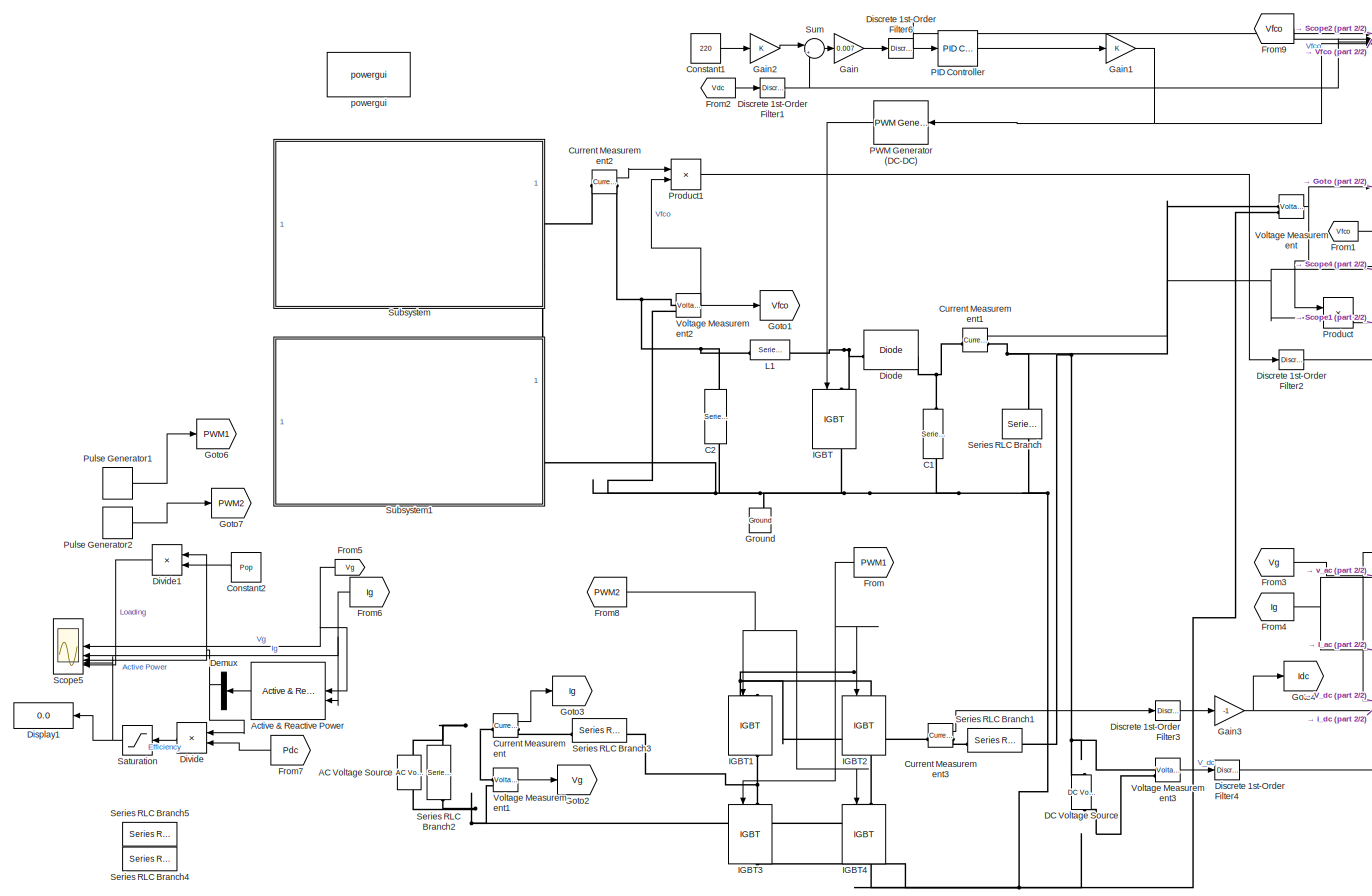
[diagram: root canvas - part 1/2, most of the canvas]
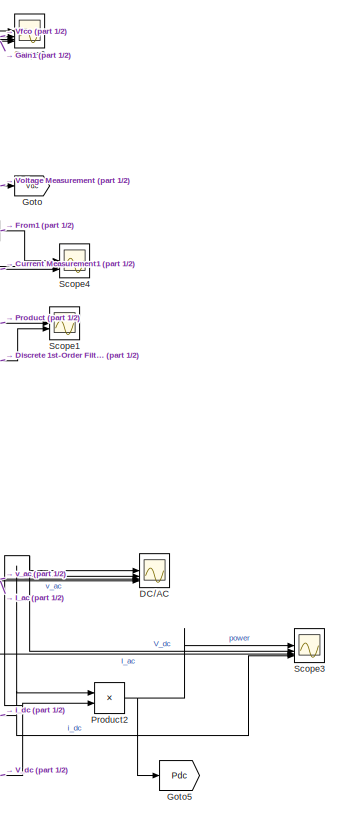
[diagram: root canvas - part 2/2, right side, full height]
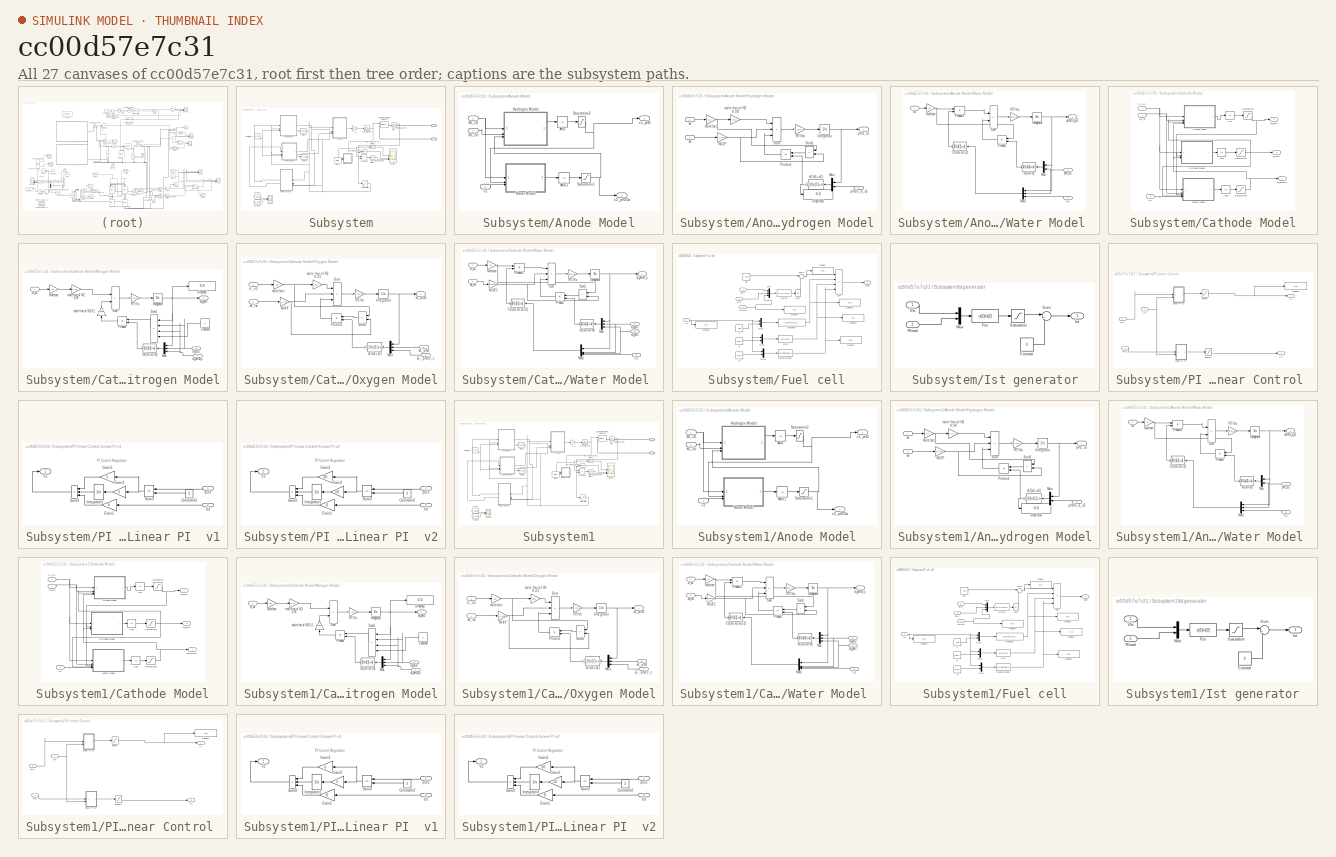
[diagram: thumbnail index - all 27 canvases of the model, root first then tree order]
MODEL slx_cc00d57e7c31
KIND model
CONFIG AbsTol = auto
CONFIG EnableMultiTasking = off
CONFIG FixedStep = auto
CONFIG MaxStep = auto
CONFIG MinStep = auto
CONFIG RelTol = 1e-3
CONFIG SampleTimeConstraint = Unconstrained
CONFIG SolverName = VariableStepAuto
CONFIG StartTime = 0.0
CONFIG StopTime = 5
BLOCK [Reference] AC Voltage Source  REF=spsACVoltageSourceLib/AC Voltage Source
  LibrarySourceBlock = sps_lib/Sources/AC Voltage Source
  SourceBlock = spsACVoltageSourceLib/AC Voltage Source
  SourceType = AC Voltage Source
BLOCK [Reference] Active & Reactive Power  REF=powerlib_extras/Measurements/Active & Reactive
Power
  NameLocation = top
  SourceBlock = powerlib_extras/Measurements/Active & Reactive\nPower
  SourceType = Active & Reactive Power
BLOCK [Reference] C1  REF=spsSeriesRLCBranchLib/Series RLC Branch
  AttributesFormatString = \n
  LibrarySourceBlock = sps_lib/Passives/Series RLC Branch
  NameLocation = left
  SourceBlock = spsSeriesRLCBranchLib/Series RLC Branch
  SourceType = Series RLC Branch
BLOCK [Reference] C2  REF=spsSeriesRLCBranchLib/Series RLC Branch
  AttributesFormatString = \n
  Commented = on
  LibrarySourceBlock = sps_lib/Passives/Series RLC Branch
  NameLocation = left
  SourceBlock = spsSeriesRLCBranchLib/Series RLC Branch
  SourceType = Series RLC Branch
BLOCK [Constant] Constant1
  Value = 220
BLOCK [Constant] Constant2
  Value = Pop
BLOCK [Reference] Current Measurement  REF=spsCurrentMeasurementLib/Current Measurement
  LibrarySourceBlock = sps_lib/Sensors and Measurements/Current Measurement
  SourceBlock = spsCurrentMeasurementLib/Current Measurement
  SourceType = Current Measurement
  UserDataPersistent = on
BLOCK [Reference] Current Measurement1  REF=spsCurrentMeasurementLib/Current Measurement
  LibrarySourceBlock = sps_lib/Sensors and Measurements/Current Measurement
  SourceBlock = spsCurrentMeasurementLib/Current Measurement
  SourceType = Current Measurement
  UserDataPersistent = on
BLOCK [Reference] Current Measurement2  REF=spsCurrentMeasurementLib/Current Measurement
  LibrarySourceBlock = sps_lib/Sensors and Measurements/Current Measurement
  SourceBlock = spsCurrentMeasurementLib/Current Measurement
  SourceType = Current Measurement
  UserDataPersistent = on
BLOCK [Reference] Current Measurement3  REF=spsCurrentMeasurementLib/Current Measurement
  LibrarySourceBlock = sps_lib/Sensors and Measurements/Current Measurement
  SourceBlock = spsCurrentMeasurementLib/Current Measurement
  SourceType = Current Measurement
  UserDataPersistent = on
BLOCK [Reference] DC Voltage Source  REF=spsDCVoltageSourceLib/DC Voltage Source
  Commented = on
  LibrarySourceBlock = sps_lib/Sources/DC Voltage Source
  SourceBlock = spsDCVoltageSourceLib/DC Voltage Source
  SourceType = DC Voltage Source
BLOCK [Scope] DC//AC
  Floating = off
  NumInputPorts = 4
  ScopeSpecificationString = Simulink.scopes.TimeScopeBlockCfg('CurrentConfiguration', extmgr.ConfigurationSet(extmgr.Configuration('Core','General UI',true),extmgr.Configuration('Core','Source UI',true),extmgr.Configuration('Sources','WiredSimulink',true,'DataLoggingVariableName','ScopeData1'),extmgr.Configuration('Visuals','Time Domain',true,'SerializedDisplays',{struct('MinYLimReal','-29.00826','MaxYLimReal','261.07433','Y...<+3811ch>
BLOCK [Demux] Demux
  Outputs = 2
BLOCK [Reference] Diode  REF=spsDiodeLib/Diode
  LibrarySourceBlock = sps_lib/Power Electronics/Diode
  SourceBlock = spsDiodeLib/Diode
  SourceType = Diode
BLOCK [Reference] Discrete 1st-Order Filter1  REF=powerlib_extras/Discrete 
Control Blocks/Discrete
1st-Order
Filter
  SourceBlock = powerlib_extras/Discrete \nControl Blocks/Discrete\n1st-Order\nFilter
  SourceType = Discrete 1st-Order Filter
BLOCK [Reference] Discrete 1st-Order Filter2  REF=powerlib_extras/Discrete 
Control Blocks/Discrete
1st-Order
Filter
  SourceBlock = powerlib_extras/Discrete \nControl Blocks/Discrete\n1st-Order\nFilter
  SourceType = Discrete 1st-Order Filter
BLOCK [Reference] Discrete 1st-Order Filter3  REF=powerlib_extras/Discrete 
Control Blocks/Discrete
1st-Order
Filter
  SourceBlock = powerlib_extras/Discrete \nControl Blocks/Discrete\n1st-Order\nFilter
  SourceType = Discrete 1st-Order Filter
BLOCK [Reference] Discrete 1st-Order Filter4  REF=powerlib_extras/Discrete 
Control Blocks/Discrete
1st-Order
Filter
  SourceBlock = powerlib_extras/Discrete \nControl Blocks/Discrete\n1st-Order\nFilter
  SourceType = Discrete 1st-Order Filter
BLOCK [Reference] Discrete 1st-Order Filter6  REF=powerlib_extras/Discrete 
Control Blocks/Discrete
1st-Order
Filter
  SourceBlock = powerlib_extras/Discrete \nControl Blocks/Discrete\n1st-Order\nFilter
  SourceType = Discrete 1st-Order Filter
BLOCK [Display] Display1
  Decimation = 1
BLOCK [Product] Divide
  Inputs = */
BLOCK [Product] Divide1
  Inputs = */
BLOCK [From] From
  GotoTag = PWM1
BLOCK [From] From1
  GotoTag = Vfco
BLOCK [From] From2
  GotoTag = Vdc
BLOCK [From] From3
  GotoTag = Vg
BLOCK [From] From4
  GotoTag = Ig
BLOCK [From] From5
  GotoTag = Vg
BLOCK [From] From6
  GotoTag = Ig
BLOCK [From] From7
  GotoTag = Pdc
BLOCK [From] From8
  GotoTag = PWM2
BLOCK [From] From9
  GotoTag = Vfco
BLOCK [Gain] Gain
  Gain = 0.007
BLOCK [Gain] Gain1
BLOCK [Gain] Gain2
BLOCK [Gain] Gain3
  Gain = -1
BLOCK [Goto] Goto
  GotoTag = Vdc
BLOCK [Goto] Goto1
  GotoTag = Vfco
BLOCK [Goto] Goto2
  GotoTag = Vg
BLOCK [Goto] Goto3
  GotoTag = Ig
BLOCK [Goto] Goto4
  GotoTag = Idc
BLOCK [Goto] Goto5
  GotoTag = Pdc
BLOCK [Goto] Goto6
  GotoTag = PWM1
BLOCK [Goto] Goto7
  GotoTag = PWM2
BLOCK [Reference] Ground  REF=spsGroundLib/Ground
  LibrarySourceBlock = sps_lib/Utilities/Ground
  NameLocation = right
  SourceBlock = spsGroundLib/Ground
  SourceType = Ground
BLOCK [Reference] IGBT  REF=spsIGBTLib/IGBT
  LibrarySourceBlock = sps_lib/Power Electronics/IGBT
  NameLocation = left
  SourceBlock = spsIGBTLib/IGBT
  SourceType = IGBT
BLOCK [Reference] IGBT1  REF=spsIGBTLib/IGBT
  LibrarySourceBlock = sps_lib/Power Electronics/IGBT
  NameLocation = left
  SourceBlock = spsIGBTLib/IGBT
  SourceType = IGBT
BLOCK [Reference] IGBT2  REF=spsIGBTLib/IGBT
  LibrarySourceBlock = sps_lib/Power Electronics/IGBT
  NameLocation = left
  SourceBlock = spsIGBTLib/IGBT
  SourceType = IGBT
BLOCK [Reference] IGBT3  REF=spsIGBTLib/IGBT
  LibrarySourceBlock = sps_lib/Power Electronics/IGBT
  NameLocation = left
  SourceBlock = spsIGBTLib/IGBT
  SourceType = IGBT
BLOCK [Reference] IGBT4  REF=spsIGBTLib/IGBT
  LibrarySourceBlock = sps_lib/Power Electronics/IGBT
  NameLocation = left
  SourceBlock = spsIGBTLib/IGBT
  SourceType = IGBT
BLOCK [Reference] L1  REF=spsSeriesRLCBranchLib/Series RLC Branch
  LibrarySourceBlock = sps_lib/Passives/Series RLC Branch
  SourceBlock = spsSeriesRLCBranchLib/Series RLC Branch
  SourceType = Series RLC Branch
BLOCK [Reference] PID Controller  REF=slpidlib/PID Controller
  LibrarySourceBlock = simulink/Continuous/PID Controller
  SourceBlock = slpidlib/PID Controller
  SourceType = PID 1dof
BLOCK [Reference] PWM Generator (DC-DC)  REF=spsPWMGeneratorDCDCLib/PWM Generator
(DC-DC)
  LibrarySourceBlock = sps_lib/Power Electronics/Power Electronics Control/PWM Generator\n(DC-DC)
  SourceBlock = spsPWMGeneratorDCDCLib/PWM Generator\n(DC-DC)
  SourceType = PWM Generator (DC-DC)
BLOCK [Product] Product
BLOCK [Product] Product1
BLOCK [Product] Product2
BLOCK [DiscretePulseGenerator] Pulse Generator1
  Period = 1/50
  PhaseDelay = 11/12/50
  PulseType = Time based
  PulseWidth = 50
BLOCK [DiscretePulseGenerator] Pulse Generator2
  Period = 1/50
  PhaseDelay = 5/12/50
  PulseType = Time based
  PulseWidth = 50
BLOCK [Saturate] Saturation
  LowerLimit = 0
  UpperLimit = 1
BLOCK [Scope] Scope1
  Floating = off
  NumInputPorts = 2
  ScopeSpecificationString = Simulink.scopes.TimeScopeBlockCfg('CurrentConfiguration', extmgr.ConfigurationSet(extmgr.Configuration('Core','General UI',true),extmgr.Configuration('Core','Source UI',true),extmgr.Configuration('Sources','WiredSimulink',true,'DataLoggingVariableName','ScopeData2'),extmgr.Configuration('Visuals','Time Domain',true,'SerializedDisplays',{struct('MinYLimReal','-2779.21462','MaxYLimReal','24912.84984...<+2291ch>
BLOCK [Scope] Scope2
  Floating = off
  NumInputPorts = 4
  ScopeSpecificationString = Simulink.scopes.TimeScopeBlockCfg('CurrentConfiguration', extmgr.ConfigurationSet(extmgr.Configuration('Core','General UI',true),extmgr.Configuration('Core','Source UI',true),extmgr.Configuration('Sources','WiredSimulink',true,'DataLoggingVariableName','ScopeData3'),extmgr.Configuration('Visuals','Time Domain',true,'SerializedDisplays',{struct('MinYLimReal','-0.08713','MaxYLimReal','0.7686','YLabe...<+3891ch>
BLOCK [Scope] Scope3
  Floating = off
  NumInputPorts = 4
  ScopeSpecificationString = Simulink.scopes.TimeScopeBlockCfg('CurrentConfiguration', extmgr.ConfigurationSet(extmgr.Configuration('Core','General UI',true),extmgr.Configuration('Core','Source UI',true),extmgr.Configuration('Sources','WiredSimulink',true,'DataLoggingVariableName','ScopeData4'),extmgr.Configuration('Visuals','Time Domain',true,'SerializedDisplays',{struct('MinYLimReal','-2064.10175','MaxYLimReal','18569.4708'...<+3092ch>
BLOCK [Scope] Scope4
  Floating = off
  NumInputPorts = 3
  ScopeSpecificationString = Simulink.scopes.TimeScopeBlockCfg('CurrentConfiguration', extmgr.ConfigurationSet(extmgr.Configuration('Core','General UI',true),extmgr.Configuration('Core','Source UI',true),extmgr.Configuration('Sources','WiredSimulink',true,'DataLoggingVariableName','ScopeData5'),extmgr.Configuration('Visuals','Time Domain',true,'SerializedDisplays',{struct('MinYLimReal','-11.62622','MaxYLimReal','104.63599','Y...<+3063ch>
BLOCK [Scope] Scope5
  Floating = off
  NumInputPorts = 5
  ScopeSpecificationString = Simulink.scopes.TimeScopeBlockCfg('CurrentConfiguration', extmgr.ConfigurationSet(extmgr.Configuration('Core','General UI',true),extmgr.Configuration('Core','Source UI',true),extmgr.Configuration('Sources','WiredSimulink',true,'DataLoggingVariableName','ScopeData1'),extmgr.Configuration('Visuals','Time Domain',true,'SerializedDisplays',{struct('MinYLimReal','-476.25','MaxYLimReal','476.25','YLabel...<+4153ch>
BLOCK [Reference] Series RLC Branch  REF=spsSeriesRLCBranchLib/Series RLC Branch
  Commented = on
  LibrarySourceBlock = sps_lib/Passives/Series RLC Branch
  NameLocation = right
  SourceBlock = spsSeriesRLCBranchLib/Series RLC Branch
  SourceType = Series RLC Branch
BLOCK [Reference] Series RLC Branch1  REF=spsSeriesRLCBranchLib/Series RLC Branch
  LibrarySourceBlock = sps_lib/Passives/Series RLC Branch
  SourceBlock = spsSeriesRLCBranchLib/Series RLC Branch
  SourceType = Series RLC Branch
BLOCK [Reference] Series RLC Branch2  REF=spsSeriesRLCBranchLib/Series RLC Branch
  LibrarySourceBlock = sps_lib/Passives/Series RLC Branch
  NameLocation = left
  SourceBlock = spsSeriesRLCBranchLib/Series RLC Branch
  SourceType = Series RLC Branch
BLOCK [Reference] Series RLC Branch3  REF=spsSeriesRLCBranchLib/Series RLC Branch
  LibrarySourceBlock = sps_lib/Passives/Series RLC Branch
  SourceBlock = spsSeriesRLCBranchLib/Series RLC Branch
  SourceType = Series RLC Branch
BLOCK [Reference] Series RLC Branch4  REF=spsSeriesRLCBranchLib/Series RLC Branch
  LibrarySourceBlock = sps_lib/Passives/Series RLC Branch
  SourceBlock = spsSeriesRLCBranchLib/Series RLC Branch
  SourceType = Series RLC Branch
BLOCK [Reference] Series RLC Branch5  REF=spsSeriesRLCBranchLib/Series RLC Branch
  LibrarySourceBlock = sps_lib/Passives/Series RLC Branch
  SourceBlock = spsSeriesRLCBranchLib/Series RLC Branch
  SourceType = Series RLC Branch
BLOCK [SubSystem] Subsystem
BLOCK [PMIOPort] Subsystem/+
  Side = Right
BLOCK [PMIOPort] Subsystem/-
  Port = 2
  Side = Right
BLOCK [Gain] Subsystem/A-2
  Gain = N
  OutDataTypeStr = Inherit: Same as input
  ParamDataTypeStr = Inherit: Same as input
  SaturateOnIntegerOverflow = on
BLOCK [SubSystem] Subsystem/Anode Model
BLOCK [Abs] Subsystem/Anode Model/Abs
BLOCK [Abs] Subsystem/Anode Model/Abs1
BLOCK [Inport] Subsystem/Anode Model/C1
  Port = 3
BLOCK [SubSystem] Subsystem/Anode Model/Hydrogen Model
BLOCK [Display] Subsystem/Anode Model/Hydrogen Model/Display5
  Decimation = 1
BLOCK [Integrator] Subsystem/Anode Model/Hydrogen Model/Integrator
  InitialCondition = 1
BLOCK [Mux] Subsystem/Anode Model/Hydrogen Model/Mux
  DisplayOption = bar
  Inputs = 2
  NameLocation = top
BLOCK [Gain] Subsystem/Anode Model/Hydrogen Model/NI//2F
  Gain = N/(2*F)
  OutDataTypeStr = Inherit: Same as input
  ParamDataTypeStr = Inherit: Same as input
  SaturateOnIntegerOverflow = on
BLOCK [Product] Subsystem/Anode Model/Hydrogen Model/Product
  NameLocation = top
  OutDataTypeStr = Inherit: Same as first input
  SaturateOnIntegerOverflow = on
BLOCK [Gain] Subsystem/Anode Model/Hydrogen Model/RT//Va
  Gain = (R*T)/Va
  OutDataTypeStr = Inherit: Same as input
  ParamDataTypeStr = Inherit: Same as input
  SaturateOnIntegerOverflow = on
BLOCK [Sum] Subsystem/Anode Model/Hydrogen Model/Sum
  IconShape = rectangular
  Inputs = |+--|
  SaturateOnIntegerOverflow = on
BLOCK [Sum] Subsystem/Anode Model/Hydrogen Model/Sum1
  IconShape = rectangular
  Inputs = |+-|
  NameLocation = top
  SaturateOnIntegerOverflow = on
BLOCK [Gain] Subsystem/Anode Model/Hydrogen Model/mole frac of H2 0.99
  Gain = YH2
  OutDataTypeStr = Inherit: Same as input
  ParamDataTypeStr = Inherit: Same as input
  SaturateOnIntegerOverflow = on
BLOCK [Gain] Subsystem/Anode Model/Hydrogen Model/mole//sec
  Gain = K1
  OutDataTypeStr = Inherit: Same as input
  ParamDataTypeStr = Inherit: Same as input
  SaturateOnIntegerOverflow = on
BLOCK [Inport] Subsystem/Anode Model/Hydrogen Model/pH20_a_x2
  NameLocation = top
  Port = 3
BLOCK [Outport] Subsystem/Anode Model/Hydrogen Model/pH2_x1
BLOCK [Fcn] Subsystem/Anode Model/Hydrogen Model/x1//(x1+x2)
  Expr = u[1]/(u[1]+u[2])
  NameLocation = top
BLOCK [Inport] Subsystem/Anode Model/Hydrogen Model/x6
BLOCK [Inport] Subsystem/Anode Model/Hydrogen Model/x8
  Port = 2
BLOCK [Saturate] Subsystem/Anode Model/Saturation1
  LowerLimit = 0
  UpperLimit = 100
BLOCK [Saturate] Subsystem/Anode Model/Saturation2
  LowerLimit = 0
  UpperLimit = 100
BLOCK [SubSystem] Subsystem/Anode Model/Water Model 
BLOCK [Inport] Subsystem/Anode Model/Water Model /C1
  NameLocation = top
  Port = 3
BLOCK [Fcn] Subsystem/Anode Model/Water Model /C1//(x1+x2-C2)
  Expr = u[3]/(u[1]+u[2]-u[3])
  NameLocation = top
BLOCK [Integrator] Subsystem/Anode Model/Water Model /Integrator
  InitialCondition = 1
BLOCK [Mux] Subsystem/Anode Model/Water Model /Mux
  DisplayOption = bar
  Inputs = 2
  NameLocation = top
BLOCK [Mux] Subsystem/Anode Model/Water Model /Mux1
  DisplayOption = bar
  Inputs = 3
  NameLocation = top
BLOCK [Product] Subsystem/Anode Model/Water Model /Product
  NameLocation = top
  OutDataTypeStr = Inherit: Same as first input
  SaturateOnIntegerOverflow = on
BLOCK [Product] Subsystem/Anode Model/Water Model /Product1
  OutDataTypeStr = Inherit: Same as first input
  SaturateOnIntegerOverflow = on
BLOCK [Gain] Subsystem/Anode Model/Water Model /RT//Va
  Gain = (R*T)/Va
  OutDataTypeStr = Inherit: Same as input
  ParamDataTypeStr = Inherit: Same as input
  SaturateOnIntegerOverflow = on
BLOCK [Sum] Subsystem/Anode Model/Water Model /Sum
  IconShape = rectangular
  Inputs = |+-|
  SaturateOnIntegerOverflow = on
BLOCK [Gain] Subsystem/Anode Model/Water Model /mole//sec
  Gain = K1
  OutDataTypeStr = Inherit: Same as input
  ParamDataTypeStr = Inherit: Same as input
  SaturateOnIntegerOverflow = on
BLOCK [Outport] Subsystem/Anode Model/Water Model /pH2O_a_x2
BLOCK [Inport] Subsystem/Anode Model/Water Model /pH2_x1
  NameLocation = top
  Port = 2
BLOCK [Fcn] Subsystem/Anode Model/Water Model /x1//(x1+x2)
  Expr = u[1]/(u[1]+u[2])
  NameLocation = top
BLOCK [Inport] Subsystem/Anode Model/Water Model /x6
BLOCK [Inport] Subsystem/Anode Model/X6_Ist
  Port = 2
BLOCK [Inport] Subsystem/Anode Model/X6_U1
BLOCK [Outport] Subsystem/Anode Model/x1_pH2
BLOCK [Outport] Subsystem/Anode Model/x2_pH2Oa
  Port = 2
BLOCK [SubSystem] Subsystem/Cathode Model
BLOCK [Abs] Subsystem/Cathode Model/Abs
BLOCK [Abs] Subsystem/Cathode Model/Abs1
BLOCK [Abs] Subsystem/Cathode Model/Abs2
BLOCK [Inport] Subsystem/Cathode Model/C2
  Port = 3
BLOCK [SubSystem] Subsystem/Cathode Model/Nitrogen Model
BLOCK [Constant] Subsystem/Cathode Model/Nitrogen Model/Constant
  NameLocation = top
  Value = 3
BLOCK [Display] Subsystem/Cathode Model/Nitrogen Model/Display2
  Decimation = 1
BLOCK [Integrator] Subsystem/Cathode Model/Nitrogen Model/Integrator
  InitialCondition = 1
BLOCK [Mux] Subsystem/Cathode Model/Nitrogen Model/Mux
  DisplayOption = bar
  Inputs = 3
  NameLocation = top
BLOCK [Product] Subsystem/Cathode Model/Nitrogen Model/Product
  NameLocation = top
  OutDataTypeStr = Inherit: Same as first input
  SaturateOnIntegerOverflow = on
BLOCK [Gain] Subsystem/Cathode Model/Nitrogen Model/RT//Vc
  Gain = (R*T)/Va
  OutDataTypeStr = Inherit: Same as input
  ParamDataTypeStr = Inherit: Same as input
  SaturateOnIntegerOverflow = on
BLOCK [Sum] Subsystem/Cathode Model/Nitrogen Model/Sum
  IconShape = rectangular
  Inputs = |+-|
  SaturateOnIntegerOverflow = on
BLOCK [Sum] Subsystem/Cathode Model/Nitrogen Model/Sum1
  IconShape = rectangular
  Inputs = |+++-|
  NameLocation = top
  SaturateOnIntegerOverflow = on
BLOCK [Gain] Subsystem/Cathode Model/Nitrogen Model/mole frac of N2 0.1
  Gain = 0.0018
  NameLocation = right
  OutDataTypeStr = Inherit: Same as input
  ParamDataTypeStr = Inherit: Same as input
  SaturateOnIntegerOverflow = on
BLOCK [Gain] Subsystem/Cathode Model/Nitrogen Model/mole frac of N2 0.79
  Gain = 0.79
  OutDataTypeStr = Inherit: Same as input
  ParamDataTypeStr = Inherit: Same as input
  SaturateOnIntegerOverflow = on
BLOCK [Gain] Subsystem/Cathode Model/Nitrogen Model/mole//sec
  Gain = K2
  OutDataTypeStr = Inherit: Same as input
  ParamDataTypeStr = Inherit: Same as input
  SaturateOnIntegerOverflow = on
BLOCK [Fcn] Subsystem/Cathode Model/Nitrogen Model/x1//(x1+x2+x3)
  Expr = u[1]/(u[1]+u[2]+u[3])
  NameLocation = top
BLOCK [Inport] Subsystem/Cathode Model/Nitrogen Model/x3_pO2
  NameLocation = top
  Port = 2
BLOCK [Outport] Subsystem/Cathode Model/Nitrogen Model/x4_pN2
BLOCK [Inport] Subsystem/Cathode Model/Nitrogen Model/x5_pH20_c
  NameLocation = top
  Port = 3
BLOCK [Inport] Subsystem/Cathode Model/Nitrogen Model/x7_u2
BLOCK [SubSystem] Subsystem/Cathode Model/Oxygen Model
BLOCK [Integrator] Subsystem/Cathode Model/Oxygen Model/Integrator
  InitialCondition = 1
BLOCK [Mux] Subsystem/Cathode Model/Oxygen Model/Mux
  DisplayOption = bar
  Inputs = 3
  NameLocation = top
BLOCK [Gain] Subsystem/Cathode Model/Oxygen Model/NI//4F
  Gain = N/(4*F)
  OutDataTypeStr = Inherit: Same as input
  ParamDataTypeStr = Inherit: Same as input
  SaturateOnIntegerOverflow = on
BLOCK [Product] Subsystem/Cathode Model/Oxygen Model/Product
  NameLocation = top
  OutDataTypeStr = Inherit: Same as first input
  SaturateOnIntegerOverflow = on
BLOCK [Gain] Subsystem/Cathode Model/Oxygen Model/RT//Vc
  Gain = (R*T)/Va
  OutDataTypeStr = Inherit: Same as input
  ParamDataTypeStr = Inherit: Same as input
  SaturateOnIntegerOverflow = on
BLOCK [Sum] Subsystem/Cathode Model/Oxygen Model/Sum
  IconShape = rectangular
  Inputs = |+--|
  SaturateOnIntegerOverflow = on
BLOCK [Sum] Subsystem/Cathode Model/Oxygen Model/Sum1
  IconShape = rectangular
  Inputs = |+-|
  NameLocation = top
  SaturateOnIntegerOverflow = on
BLOCK [Gain] Subsystem/Cathode Model/Oxygen Model/mole frac of O2 0.21
  Gain = YO2
  OutDataTypeStr = Inherit: Same as input
  ParamDataTypeStr = Inherit: Same as input
  SaturateOnIntegerOverflow = on
BLOCK [Gain] Subsystem/Cathode Model/Oxygen Model/mole//sec
  Gain = K2
  OutDataTypeStr = Inherit: Same as input
  ParamDataTypeStr = Inherit: Same as input
  SaturateOnIntegerOverflow = on
BLOCK [Fcn] Subsystem/Cathode Model/Oxygen Model/x1//(x1+x2)
  Expr = u[1]/(u[1]+u[2]+u[3])
  NameLocation = top
BLOCK [Outport] Subsystem/Cathode Model/Oxygen Model/x3_pO2
BLOCK [Inport] Subsystem/Cathode Model/Oxygen Model/x4_pN2
  NameLocation = top
  Port = 3
BLOCK [Inport] Subsystem/Cathode Model/Oxygen Model/x5_ pH20_c
  NameLocation = top
  Port = 4
BLOCK [Inport] Subsystem/Cathode Model/Oxygen Model/x7_u2
BLOCK [Inport] Subsystem/Cathode Model/Oxygen Model/x8_Ist
  Port = 2
BLOCK [Saturate] Subsystem/Cathode Model/Saturation
  LowerLimit = 0
  UpperLimit = 100
BLOCK [Saturate] Subsystem/Cathode Model/Saturation1
  LowerLimit = 0
  UpperLimit = 100
BLOCK [Saturate] Subsystem/Cathode Model/Saturation2
  LowerLimit = 0.001
  UpperLimit = 100
BLOCK [SubSystem] Subsystem/Cathode Model/Water Model 
BLOCK [Fcn] Subsystem/Cathode Model/Water Model /C1//(x1+x2+x5-C1)
  Expr = u[4]/(u[1]+u[2]+u[3]-u[4])
  NameLocation = top
BLOCK [Inport] Subsystem/Cathode Model/Water Model /C2
  NameLocation = top
  Port = 5
BLOCK [Integrator] Subsystem/Cathode Model/Water Model /Integrator
  InitialCondition = 1
BLOCK [Mux] Subsystem/Cathode Model/Water Model /Mux
  DisplayOption = bar
  Inputs = 3
  NameLocation = top
BLOCK [Mux] Subsystem/Cathode Model/Water Model /Mux1
  DisplayOption = bar
  NameLocation = top
BLOCK [Gain] Subsystem/Cathode Model/Water Model /NI//2F1
  Gain = N/(2*F)
  OutDataTypeStr = Inherit: Same as input
  ParamDataTypeStr = Inherit: Same as input
  SaturateOnIntegerOverflow = on
BLOCK [Product] Subsystem/Cathode Model/Water Model /Product
  NameLocation = top
  OutDataTypeStr = Inherit: Same as first input
  SaturateOnIntegerOverflow = on
BLOCK [Product] Subsystem/Cathode Model/Water Model /Product1
  OutDataTypeStr = Inherit: Same as first input
  SaturateOnIntegerOverflow = on
BLOCK [Gain] Subsystem/Cathode Model/Water Model /RT//Va
  Gain = (R*T)/Va
  OutDataTypeStr = Inherit: Same as input
  ParamDataTypeStr = Inherit: Same as input
  SaturateOnIntegerOverflow = on
BLOCK [Sum] Subsystem/Cathode Model/Water Model /Sum
  IconShape = rectangular
  Inputs = |++-|
  SaturateOnIntegerOverflow = on
BLOCK [Sum] Subsystem/Cathode Model/Water Model /Sum1
  IconShape = rectangular
  Inputs = |++|
  NameLocation = top
  SaturateOnIntegerOverflow = on
BLOCK [Gain] Subsystem/Cathode Model/Water Model /mole//sec
  Gain = K1
  OutDataTypeStr = Inherit: Same as input
  ParamDataTypeStr = Inherit: Same as input
  SaturateOnIntegerOverflow = on
BLOCK [Fcn] Subsystem/Cathode Model/Water Model /x1//(x1+x2+x3)
  Expr = u[1]/(u[1]+u[2]+u[3])
  NameLocation = top
BLOCK [Inport] Subsystem/Cathode Model/Water Model /x3_pO2
  NameLocation = top
  Port = 3
BLOCK [Inport] Subsystem/Cathode Model/Water Model /x4_pN2
  NameLocation = top
  Port = 4
BLOCK [Outport] Subsystem/Cathode Model/Water Model /x5_pH2O_c
BLOCK [Inport] Subsystem/Cathode Model/Water Model /x7_u2
BLOCK [Inport] Subsystem/Cathode Model/Water Model /x8_Ist
  Port = 2
BLOCK [Inport] Subsystem/Cathode Model/X7_U2
BLOCK [Inport] Subsystem/Cathode Model/X8_Ist
  Port = 2
BLOCK [Outport] Subsystem/Cathode Model/x3_pO2
BLOCK [Outport] Subsystem/Cathode Model/x4_pN2
  Port = 3
BLOCK [Outport] Subsystem/Cathode Model/x5_pH2Oc
  Port = 2
BLOCK [Reference] Subsystem/Controlled Voltage Source  REF=spsControlledVoltageSourceLib/Controlled Voltage Source
  NameLocation = left
  SourceBlock = spsControlledVoltageSourceLib/Controlled Voltage Source
  SourceType = Controlled Voltage Source
BLOCK [Reference] Subsystem/Current Measurement  REF=spsCurrentMeasurementLib/Current Measurement
  SourceBlock = spsCurrentMeasurementLib/Current Measurement
  SourceType = Current Measurement
  UserDataPersistent = on
BLOCK [Reference] Subsystem/Discrete 1st-Order Filter1  REF=powerlib_extras/Discrete 
Control Blocks/Discrete
1st-Order
Filter
  SourceBlock = powerlib_extras/Discrete \nControl Blocks/Discrete\n1st-Order\nFilter
  SourceType = Discrete 1st-Order Filter
BLOCK [Reference] Subsystem/Discrete 1st-Order Filter4  REF=powerlib_extras/Discrete 
Control Blocks/Discrete
1st-Order
Filter
  SourceBlock = powerlib_extras/Discrete \nControl Blocks/Discrete\n1st-Order\nFilter
  SourceType = Discrete 1st-Order Filter
BLOCK [Reference] Subsystem/Discrete 1st-Order Filter5  REF=powerlib_extras/Discrete 
Control Blocks/Discrete
1st-Order
Filter
  SourceBlock = powerlib_extras/Discrete \nControl Blocks/Discrete\n1st-Order\nFilter
  SourceType = Discrete 1st-Order Filter
BLOCK [From] Subsystem/From4
  GotoTag = x2_ph2oa
BLOCK [From] Subsystem/From9
  GotoTag = x4_pn2
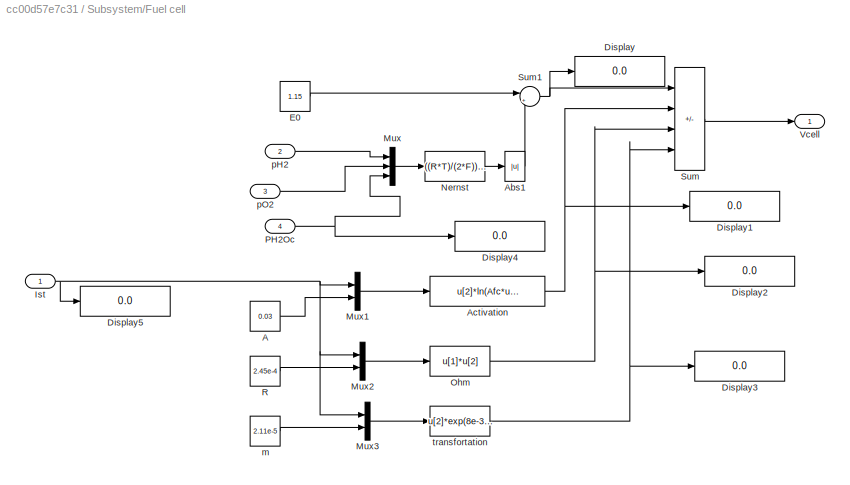
BLOCK [SubSystem] Subsystem/Fuel cell
BLOCK [Constant] Subsystem/Fuel cell/A
  NameLocation = top
  Value = 0.03
BLOCK [Abs] Subsystem/Fuel cell/Abs1
BLOCK [Fcn] Subsystem/Fuel cell/Activation
  Expr = u[2]*ln(Afc*u[1]+0.001)
BLOCK [Display] Subsystem/Fuel cell/Display
  Decimation = 1
BLOCK [Display] Subsystem/Fuel cell/Display1
  Decimation = 1
BLOCK [Display] Subsystem/Fuel cell/Display2
  Decimation = 1
BLOCK [Display] Subsystem/Fuel cell/Display3
  Decimation = 1
BLOCK [Display] Subsystem/Fuel cell/Display4
  Decimation = 1
BLOCK [Display] Subsystem/Fuel cell/Display5
  Decimation = 1
BLOCK [Constant] Subsystem/Fuel cell/E0
  NameLocation = top
  Value = 1.15
BLOCK [Inport] Subsystem/Fuel cell/Ist
BLOCK [Mux] Subsystem/Fuel cell/Mux
  DisplayOption = bar
  Inputs = 3
BLOCK [Mux] Subsystem/Fuel cell/Mux1
  DisplayOption = bar
  Inputs = 2
BLOCK [Mux] Subsystem/Fuel cell/Mux2
  DisplayOption = bar
  Inputs = 2
BLOCK [Mux] Subsystem/Fuel cell/Mux3
  DisplayOption = bar
  Inputs = 2
BLOCK [Fcn] Subsystem/Fuel cell/Nernst
  Expr = ((R*T)/(2*F))*ln(u[1]*sqrt(u[2])/(u[3]))
BLOCK [Fcn] Subsystem/Fuel cell/Ohm
  Expr = u[1]*u[2]
BLOCK [Inport] Subsystem/Fuel cell/PH2Oc
  Port = 4
BLOCK [Constant] Subsystem/Fuel cell/R
  NameLocation = top
  Value = 2.45e-4
BLOCK [Sum] Subsystem/Fuel cell/Sum
  IconShape = rectangular
  Inputs = |+---|
  SaturateOnIntegerOverflow = on
BLOCK [Sum] Subsystem/Fuel cell/Sum1
  Inputs = |++
  SaturateOnIntegerOverflow = on
BLOCK [Outport] Subsystem/Fuel cell/Vcell 
BLOCK [Constant] Subsystem/Fuel cell/m
  NameLocation = top
  Value = 2.11e-5
BLOCK [Inport] Subsystem/Fuel cell/pH2
  Port = 2
BLOCK [Inport] Subsystem/Fuel cell/pO2
  Port = 3
BLOCK [Fcn] Subsystem/Fuel cell/transfortation
  Expr = u[2]*exp(8e-3*u[1])
BLOCK [Goto] Subsystem/Goto13
  GotoTag = x2_ph2oa
BLOCK [Goto] Subsystem/Goto14
  GotoTag = x4_pn2
BLOCK [Constant] Subsystem/Humidity_C
  NameLocation = top
  Value = 47.39
BLOCK [SubSystem] Subsystem/Ist generator
  Commented = on
BLOCK [Constant] Subsystem/Ist generator/Constat
  NameLocation = top
  Value = 0
BLOCK [Fcn] Subsystem/Ist generator/Fcn
  Expr = u[1]/u[2]
BLOCK [Outport] Subsystem/Ist generator/Ist
BLOCK [Mux] Subsystem/Ist generator/Mux
  DisplayOption = bar
  Inputs = 2
BLOCK [Inport] Subsystem/Ist generator/Rload
  Port = 2
BLOCK [Saturate] Subsystem/Ist generator/Saturation
  LowerLimit = 0
  UpperLimit = 10000
BLOCK [Sum] Subsystem/Ist generator/Sum
  Inputs = |++
  SaturateOnIntegerOverflow = on
BLOCK [Inport] Subsystem/Ist generator/Vfc
BLOCK [SubSystem] Subsystem/PI linear Control 
  NameLocation = top
BLOCK [Display] Subsystem/PI linear Control /Display2
  Decimation = 1
BLOCK [Inport] Subsystem/PI linear Control /Ist
BLOCK [SubSystem] Subsystem/PI linear Control /Linear PI  v1
  NameLocation = top
BLOCK [Constant] Subsystem/PI linear Control /Linear PI  v1/Constant2
  Value = 3
BLOCK [Gain] Subsystem/PI linear Control /Linear PI  v1/Gain1
  Gain = 0
  OutDataTypeStr = Inherit: Same as input
  ParamDataTypeStr = Inherit: Same as input
  SaturateOnIntegerOverflow = on
BLOCK [Gain] Subsystem/PI linear Control /Linear PI  v1/Gain2
  Gain = 5
  OutDataTypeStr = Inherit: Same as input
  ParamDataTypeStr = Inherit: Same as input
  SaturateOnIntegerOverflow = on
BLOCK [Gain] Subsystem/PI linear Control /Linear PI  v1/Gain3
  Gain = 5
  OutDataTypeStr = Inherit: Same as input
  ParamDataTypeStr = Inherit: Same as input
  SaturateOnIntegerOverflow = on
BLOCK [Integrator] Subsystem/PI linear Control /Linear PI  v1/Integrator1
  LimitOutput = on
  LowerSaturationLimit = -100
  UpperSaturationLimit = 100
BLOCK [Inport] Subsystem/PI linear Control /Linear PI  v1/Ist
  NameLocation = top
  Port = 2
BLOCK [Sum] Subsystem/PI linear Control /Linear PI  v1/Sum3
  IconShape = rectangular
  InputSameDT = on
  Inputs = -+
  OutDataTypeStr = Inherit: Same as first input
  SaturateOnIntegerOverflow = on
BLOCK [Sum] Subsystem/PI linear Control /Linear PI  v1/Sum4
  IconShape = rectangular
  InputSameDT = on
  Inputs = +++
  OutDataTypeStr = Inherit: Same as first input
  SaturateOnIntegerOverflow = on
BLOCK [Inport] Subsystem/PI linear Control /Linear PI  v1/pO2
  NameLocation = top
BLOCK [Outport] Subsystem/PI linear Control /Linear PI  v1/v2 
BLOCK [SubSystem] Subsystem/PI linear Control /Linear PI  v2
  NameLocation = top
BLOCK [Constant] Subsystem/PI linear Control /Linear PI  v2/Constant2
  Value = 3
BLOCK [Gain] Subsystem/PI linear Control /Linear PI  v2/Gain1
  Gain = 0
  OutDataTypeStr = Inherit: Same as input
  ParamDataTypeStr = Inherit: Same as input
  SaturateOnIntegerOverflow = on
BLOCK [Gain] Subsystem/PI linear Control /Linear PI  v2/Gain2
  Gain = 50
  OutDataTypeStr = Inherit: Same as input
  ParamDataTypeStr = Inherit: Same as input
  SaturateOnIntegerOverflow = on
BLOCK [Gain] Subsystem/PI linear Control /Linear PI  v2/Gain3
  Gain = 50
  OutDataTypeStr = Inherit: Same as input
  ParamDataTypeStr = Inherit: Same as input
  SaturateOnIntegerOverflow = on
BLOCK [Integrator] Subsystem/PI linear Control /Linear PI  v2/Integrator1
  LimitOutput = on
  LowerSaturationLimit = -1000
  UpperSaturationLimit = 1000
BLOCK [Inport] Subsystem/PI linear Control /Linear PI  v2/Ist
  NameLocation = top
  Port = 2
BLOCK [Sum] Subsystem/PI linear Control /Linear PI  v2/Sum3
  IconShape = rectangular
  InputSameDT = on
  Inputs = -+
  OutDataTypeStr = Inherit: Same as first input
  SaturateOnIntegerOverflow = on
BLOCK [Sum] Subsystem/PI linear Control /Linear PI  v2/Sum4
  IconShape = rectangular
  InputSameDT = on
  Inputs = +++
  OutDataTypeStr = Inherit: Same as first input
  SaturateOnIntegerOverflow = on
BLOCK [Inport] Subsystem/PI linear Control /Linear PI  v2/pO2
  NameLocation = top
BLOCK [Outport] Subsystem/PI linear Control /Linear PI  v2/v2 
BLOCK [Inport] Subsystem/PI linear Control /PH2
  Port = 2
BLOCK [Inport] Subsystem/PI linear Control /PO2
  Port = 3
BLOCK [Outport] Subsystem/PI linear Control /U1 
BLOCK [Outport] Subsystem/PI linear Control /U2
  Port = 2
BLOCK [Saturate] Subsystem/PI linear Control /limiter
  LowerLimit = 0
  UpperLimit = 1000
  ZeroCross = off
BLOCK [Saturate] Subsystem/PI linear Control /limiter1
  LowerLimit = 0
  UpperLimit = 1000
  ZeroCross = off
BLOCK [Product] Subsystem/Product1
BLOCK [Saturate] Subsystem/Saturation
  LowerLimit = 0
  UpperLimit = 10000
BLOCK [Scope] Subsystem/Scope
  Floating = off
  NumInputPorts = 3
  ScopeSpecificationString = Simulink.scopes.TimeScopeBlockCfg('CurrentConfiguration', extmgr.ConfigurationSet(extmgr.Configuration('Core','General UI',true),extmgr.Configuration('Core','Source UI',true),extmgr.Configuration('Sources','WiredSimulink',true,'DataLoggingVariableName','ScopeData2'),extmgr.Configuration('Visuals','Time Domain',true,'SerializedDisplays',{struct('MinYLimReal','-5.9378','MaxYLimReal','53.44021','YLab...<+3118ch>
BLOCK [Scope] Subsystem/Scope3
  Floating = off
  NumInputPorts = 2
  ScopeSpecificationString = Simulink.scopes.TimeScopeBlockCfg('CurrentConfiguration', extmgr.ConfigurationSet(extmgr.Configuration('Core','General UI',true),extmgr.Configuration('Core','Source UI',true),extmgr.Configuration('Sources','WiredSimulink',true,'DataLoggingVariableName','ScopeData3'),extmgr.Configuration('Visuals','Time Domain',true,'SerializedDisplays',{struct('MinYLimReal','-0.1993','MaxYLimReal','1.79367','YLabe...<+2243ch>
BLOCK [Reference] Subsystem/Timer2  REF=powerlib_extras/Control 
Blocks/Timer
  Commented = on
  SourceBlock = powerlib_extras/Control \nBlocks/Timer
  SourceType = Timer
BLOCK [TransferFcn] Subsystem/Transfer Fcn
  Denominator = [1e-4 1]
  NameLocation = top
BLOCK [SubSystem] Subsystem1
BLOCK [PMIOPort] Subsystem1/+
  Side = Right
BLOCK [PMIOPort] Subsystem1/-
  Port = 2
  Side = Right
BLOCK [Gain] Subsystem1/A-2
  Gain = N
  OutDataTypeStr = Inherit: Same as input
  ParamDataTypeStr = Inherit: Same as input
  SaturateOnIntegerOverflow = on
BLOCK [SubSystem] Subsystem1/Anode Model
BLOCK [Abs] Subsystem1/Anode Model/Abs
BLOCK [Abs] Subsystem1/Anode Model/Abs1
BLOCK [Inport] Subsystem1/Anode Model/C1
  Port = 3
BLOCK [SubSystem] Subsystem1/Anode Model/Hydrogen Model
BLOCK [Display] Subsystem1/Anode Model/Hydrogen Model/Display5
  Decimation = 1
BLOCK [Integrator] Subsystem1/Anode Model/Hydrogen Model/Integrator
  InitialCondition = 1
BLOCK [Mux] Subsystem1/Anode Model/Hydrogen Model/Mux
  DisplayOption = bar
  Inputs = 2
  NameLocation = top
BLOCK [Gain] Subsystem1/Anode Model/Hydrogen Model/NI//2F
  Gain = N/(2*F)
  OutDataTypeStr = Inherit: Same as input
  ParamDataTypeStr = Inherit: Same as input
  SaturateOnIntegerOverflow = on
BLOCK [Product] Subsystem1/Anode Model/Hydrogen Model/Product
  NameLocation = top
  OutDataTypeStr = Inherit: Same as first input
  SaturateOnIntegerOverflow = on
BLOCK [Gain] Subsystem1/Anode Model/Hydrogen Model/RT//Va
  Gain = (R*T)/Va
  OutDataTypeStr = Inherit: Same as input
  ParamDataTypeStr = Inherit: Same as input
  SaturateOnIntegerOverflow = on
BLOCK [Sum] Subsystem1/Anode Model/Hydrogen Model/Sum
  IconShape = rectangular
  Inputs = |+--|
  SaturateOnIntegerOverflow = on
BLOCK [Sum] Subsystem1/Anode Model/Hydrogen Model/Sum1
  IconShape = rectangular
  Inputs = |+-|
  NameLocation = top
  SaturateOnIntegerOverflow = on
BLOCK [Gain] Subsystem1/Anode Model/Hydrogen Model/mole frac of H2 0.99
  Gain = YH2
  OutDataTypeStr = Inherit: Same as input
  ParamDataTypeStr = Inherit: Same as input
  SaturateOnIntegerOverflow = on
BLOCK [Gain] Subsystem1/Anode Model/Hydrogen Model/mole//sec
  Gain = K1
  OutDataTypeStr = Inherit: Same as input
  ParamDataTypeStr = Inherit: Same as input
  SaturateOnIntegerOverflow = on
BLOCK [Inport] Subsystem1/Anode Model/Hydrogen Model/pH20_a_x2
  NameLocation = top
  Port = 3
BLOCK [Outport] Subsystem1/Anode Model/Hydrogen Model/pH2_x1
BLOCK [Fcn] Subsystem1/Anode Model/Hydrogen Model/x1//(x1+x2)
  Expr = u[1]/(u[1]+u[2])
  NameLocation = top
BLOCK [Inport] Subsystem1/Anode Model/Hydrogen Model/x6
BLOCK [Inport] Subsystem1/Anode Model/Hydrogen Model/x8
  Port = 2
BLOCK [Saturate] Subsystem1/Anode Model/Saturation1
  LowerLimit = 0
  UpperLimit = 100
BLOCK [Saturate] Subsystem1/Anode Model/Saturation2
  LowerLimit = 0
  UpperLimit = 100
BLOCK [SubSystem] Subsystem1/Anode Model/Water Model 
BLOCK [Inport] Subsystem1/Anode Model/Water Model /C1
  NameLocation = top
  Port = 3
BLOCK [Fcn] Subsystem1/Anode Model/Water Model /C1//(x1+x2-C2)
  Expr = u[3]/(u[1]+u[2]-u[3])
  NameLocation = top
BLOCK [Integrator] Subsystem1/Anode Model/Water Model /Integrator
  InitialCondition = 1
BLOCK [Mux] Subsystem1/Anode Model/Water Model /Mux
  DisplayOption = bar
  Inputs = 2
  NameLocation = top
BLOCK [Mux] Subsystem1/Anode Model/Water Model /Mux1
  DisplayOption = bar
  Inputs = 3
  NameLocation = top
BLOCK [Product] Subsystem1/Anode Model/Water Model /Product
  NameLocation = top
  OutDataTypeStr = Inherit: Same as first input
  SaturateOnIntegerOverflow = on
BLOCK [Product] Subsystem1/Anode Model/Water Model /Product1
  OutDataTypeStr = Inherit: Same as first input
  SaturateOnIntegerOverflow = on
BLOCK [Gain] Subsystem1/Anode Model/Water Model /RT//Va
  Gain = (R*T)/Va
  OutDataTypeStr = Inherit: Same as input
  ParamDataTypeStr = Inherit: Same as input
  SaturateOnIntegerOverflow = on
BLOCK [Sum] Subsystem1/Anode Model/Water Model /Sum
  IconShape = rectangular
  Inputs = |+-|
  SaturateOnIntegerOverflow = on
BLOCK [Gain] Subsystem1/Anode Model/Water Model /mole//sec
  Gain = K1
  OutDataTypeStr = Inherit: Same as input
  ParamDataTypeStr = Inherit: Same as input
  SaturateOnIntegerOverflow = on
BLOCK [Outport] Subsystem1/Anode Model/Water Model /pH2O_a_x2
BLOCK [Inport] Subsystem1/Anode Model/Water Model /pH2_x1
  NameLocation = top
  Port = 2
BLOCK [Fcn] Subsystem1/Anode Model/Water Model /x1//(x1+x2)
  Expr = u[1]/(u[1]+u[2])
  NameLocation = top
BLOCK [Inport] Subsystem1/Anode Model/Water Model /x6
BLOCK [Inport] Subsystem1/Anode Model/X6_Ist
  Port = 2
BLOCK [Inport] Subsystem1/Anode Model/X6_U1
BLOCK [Outport] Subsystem1/Anode Model/x1_pH2
BLOCK [Outport] Subsystem1/Anode Model/x2_pH2Oa
  Port = 2
BLOCK [SubSystem] Subsystem1/Cathode Model
BLOCK [Abs] Subsystem1/Cathode Model/Abs
BLOCK [Abs] Subsystem1/Cathode Model/Abs1
BLOCK [Abs] Subsystem1/Cathode Model/Abs2
BLOCK [Inport] Subsystem1/Cathode Model/C2
  Port = 3
BLOCK [SubSystem] Subsystem1/Cathode Model/Nitrogen Model
BLOCK [Constant] Subsystem1/Cathode Model/Nitrogen Model/Constant
  NameLocation = top
  Value = 3
BLOCK [Display] Subsystem1/Cathode Model/Nitrogen Model/Display2
  Decimation = 1
BLOCK [Integrator] Subsystem1/Cathode Model/Nitrogen Model/Integrator
  InitialCondition = 1
BLOCK [Mux] Subsystem1/Cathode Model/Nitrogen Model/Mux
  DisplayOption = bar
  Inputs = 3
  NameLocation = top
BLOCK [Product] Subsystem1/Cathode Model/Nitrogen Model/Product
  NameLocation = top
  OutDataTypeStr = Inherit: Same as first input
  SaturateOnIntegerOverflow = on
BLOCK [Gain] Subsystem1/Cathode Model/Nitrogen Model/RT//Vc
  Gain = (R*T)/Va
  OutDataTypeStr = Inherit: Same as input
  ParamDataTypeStr = Inherit: Same as input
  SaturateOnIntegerOverflow = on
BLOCK [Sum] Subsystem1/Cathode Model/Nitrogen Model/Sum
  IconShape = rectangular
  Inputs = |+-|
  SaturateOnIntegerOverflow = on
BLOCK [Sum] Subsystem1/Cathode Model/Nitrogen Model/Sum1
  IconShape = rectangular
  Inputs = |+++-|
  NameLocation = top
  SaturateOnIntegerOverflow = on
BLOCK [Gain] Subsystem1/Cathode Model/Nitrogen Model/mole frac of N2 0.1
  Gain = 0.0018
  NameLocation = right
  OutDataTypeStr = Inherit: Same as input
  ParamDataTypeStr = Inherit: Same as input
  SaturateOnIntegerOverflow = on
BLOCK [Gain] Subsystem1/Cathode Model/Nitrogen Model/mole frac of N2 0.79
  Gain = 0.79
  OutDataTypeStr = Inherit: Same as input
  ParamDataTypeStr = Inherit: Same as input
  SaturateOnIntegerOverflow = on
BLOCK [Gain] Subsystem1/Cathode Model/Nitrogen Model/mole//sec
  Gain = K2
  OutDataTypeStr = Inherit: Same as input
  ParamDataTypeStr = Inherit: Same as input
  SaturateOnIntegerOverflow = on
BLOCK [Fcn] Subsystem1/Cathode Model/Nitrogen Model/x1//(x1+x2+x3)
  Expr = u[1]/(u[1]+u[2]+u[3])
  NameLocation = top
BLOCK [Inport] Subsystem1/Cathode Model/Nitrogen Model/x3_pO2
  NameLocation = top
  Port = 2
BLOCK [Outport] Subsystem1/Cathode Model/Nitrogen Model/x4_pN2
BLOCK [Inport] Subsystem1/Cathode Model/Nitrogen Model/x5_pH20_c
  NameLocation = top
  Port = 3
BLOCK [Inport] Subsystem1/Cathode Model/Nitrogen Model/x7_u2
BLOCK [SubSystem] Subsystem1/Cathode Model/Oxygen Model
BLOCK [Integrator] Subsystem1/Cathode Model/Oxygen Model/Integrator
  InitialCondition = 1
BLOCK [Mux] Subsystem1/Cathode Model/Oxygen Model/Mux
  DisplayOption = bar
  Inputs = 3
  NameLocation = top
BLOCK [Gain] Subsystem1/Cathode Model/Oxygen Model/NI//4F
  Gain = N/(4*F)
  OutDataTypeStr = Inherit: Same as input
  ParamDataTypeStr = Inherit: Same as input
  SaturateOnIntegerOverflow = on
BLOCK [Product] Subsystem1/Cathode Model/Oxygen Model/Product
  NameLocation = top
  OutDataTypeStr = Inherit: Same as first input
  SaturateOnIntegerOverflow = on
BLOCK [Gain] Subsystem1/Cathode Model/Oxygen Model/RT//Vc
  Gain = (R*T)/Va
  OutDataTypeStr = Inherit: Same as input
  ParamDataTypeStr = Inherit: Same as input
  SaturateOnIntegerOverflow = on
BLOCK [Sum] Subsystem1/Cathode Model/Oxygen Model/Sum
  IconShape = rectangular
  Inputs = |+--|
  SaturateOnIntegerOverflow = on
BLOCK [Sum] Subsystem1/Cathode Model/Oxygen Model/Sum1
  IconShape = rectangular
  Inputs = |+-|
  NameLocation = top
  SaturateOnIntegerOverflow = on
BLOCK [Gain] Subsystem1/Cathode Model/Oxygen Model/mole frac of O2 0.21
  Gain = YO2
  OutDataTypeStr = Inherit: Same as input
  ParamDataTypeStr = Inherit: Same as input
  SaturateOnIntegerOverflow = on
BLOCK [Gain] Subsystem1/Cathode Model/Oxygen Model/mole//sec
  Gain = K2
  OutDataTypeStr = Inherit: Same as input
  ParamDataTypeStr = Inherit: Same as input
  SaturateOnIntegerOverflow = on
BLOCK [Fcn] Subsystem1/Cathode Model/Oxygen Model/x1//(x1+x2)
  Expr = u[1]/(u[1]+u[2]+u[3])
  NameLocation = top
BLOCK [Outport] Subsystem1/Cathode Model/Oxygen Model/x3_pO2
BLOCK [Inport] Subsystem1/Cathode Model/Oxygen Model/x4_pN2
  NameLocation = top
  Port = 3
BLOCK [Inport] Subsystem1/Cathode Model/Oxygen Model/x5_ pH20_c
  NameLocation = top
  Port = 4
BLOCK [Inport] Subsystem1/Cathode Model/Oxygen Model/x7_u2
BLOCK [Inport] Subsystem1/Cathode Model/Oxygen Model/x8_Ist
  Port = 2
BLOCK [Saturate] Subsystem1/Cathode Model/Saturation
  LowerLimit = 0
  UpperLimit = 100
BLOCK [Saturate] Subsystem1/Cathode Model/Saturation1
  LowerLimit = 0
  UpperLimit = 100
BLOCK [Saturate] Subsystem1/Cathode Model/Saturation2
  LowerLimit = 0.001
  UpperLimit = 100
BLOCK [SubSystem] Subsystem1/Cathode Model/Water Model 
BLOCK [Fcn] Subsystem1/Cathode Model/Water Model /C1//(x1+x2+x5-C1)
  Expr = u[4]/(u[1]+u[2]+u[3]-u[4])
  NameLocation = top
BLOCK [Inport] Subsystem1/Cathode Model/Water Model /C2
  NameLocation = top
  Port = 5
BLOCK [Integrator] Subsystem1/Cathode Model/Water Model /Integrator
  InitialCondition = 1
BLOCK [Mux] Subsystem1/Cathode Model/Water Model /Mux
  DisplayOption = bar
  Inputs = 3
  NameLocation = top
BLOCK [Mux] Subsystem1/Cathode Model/Water Model /Mux1
  DisplayOption = bar
  NameLocation = top
BLOCK [Gain] Subsystem1/Cathode Model/Water Model /NI//2F1
  Gain = N/(2*F)
  OutDataTypeStr = Inherit: Same as input
  ParamDataTypeStr = Inherit: Same as input
  SaturateOnIntegerOverflow = on
BLOCK [Product] Subsystem1/Cathode Model/Water Model /Product
  NameLocation = top
  OutDataTypeStr = Inherit: Same as first input
  SaturateOnIntegerOverflow = on
BLOCK [Product] Subsystem1/Cathode Model/Water Model /Product1
  OutDataTypeStr = Inherit: Same as first input
  SaturateOnIntegerOverflow = on
BLOCK [Gain] Subsystem1/Cathode Model/Water Model /RT//Va
  Gain = (R*T)/Va
  OutDataTypeStr = Inherit: Same as input
  ParamDataTypeStr = Inherit: Same as input
  SaturateOnIntegerOverflow = on
BLOCK [Sum] Subsystem1/Cathode Model/Water Model /Sum
  IconShape = rectangular
  Inputs = |++-|
  SaturateOnIntegerOverflow = on
BLOCK [Sum] Subsystem1/Cathode Model/Water Model /Sum1
  IconShape = rectangular
  Inputs = |++|
  NameLocation = top
  SaturateOnIntegerOverflow = on
BLOCK [Gain] Subsystem1/Cathode Model/Water Model /mole//sec
  Gain = K1
  OutDataTypeStr = Inherit: Same as input
  ParamDataTypeStr = Inherit: Same as input
  SaturateOnIntegerOverflow = on
BLOCK [Fcn] Subsystem1/Cathode Model/Water Model /x1//(x1+x2+x3)
  Expr = u[1]/(u[1]+u[2]+u[3])
  NameLocation = top
BLOCK [Inport] Subsystem1/Cathode Model/Water Model /x3_pO2
  NameLocation = top
  Port = 3
BLOCK [Inport] Subsystem1/Cathode Model/Water Model /x4_pN2
  NameLocation = top
  Port = 4
BLOCK [Outport] Subsystem1/Cathode Model/Water Model /x5_pH2O_c
BLOCK [Inport] Subsystem1/Cathode Model/Water Model /x7_u2
BLOCK [Inport] Subsystem1/Cathode Model/Water Model /x8_Ist
  Port = 2
BLOCK [Inport] Subsystem1/Cathode Model/X7_U2
BLOCK [Inport] Subsystem1/Cathode Model/X8_Ist
  Port = 2
BLOCK [Outport] Subsystem1/Cathode Model/x3_pO2
BLOCK [Outport] Subsystem1/Cathode Model/x4_pN2
  Port = 3
BLOCK [Outport] Subsystem1/Cathode Model/x5_pH2Oc
  Port = 2
BLOCK [Reference] Subsystem1/Controlled Voltage Source  REF=spsControlledVoltageSourceLib/Controlled Voltage Source
  NameLocation = left
  SourceBlock = spsControlledVoltageSourceLib/Controlled Voltage Source
  SourceType = Controlled Voltage Source
BLOCK [Reference] Subsystem1/Current Measurement  REF=spsCurrentMeasurementLib/Current Measurement
  SourceBlock = spsCurrentMeasurementLib/Current Measurement
  SourceType = Current Measurement
  UserDataPersistent = on
BLOCK [Reference] Subsystem1/Discrete 1st-Order Filter1  REF=powerlib_extras/Discrete 
Control Blocks/Discrete
1st-Order
Filter
  SourceBlock = powerlib_extras/Discrete \nControl Blocks/Discrete\n1st-Order\nFilter
  SourceType = Discrete 1st-Order Filter
BLOCK [Reference] Subsystem1/Discrete 1st-Order Filter4  REF=powerlib_extras/Discrete 
Control Blocks/Discrete
1st-Order
Filter
  SourceBlock = powerlib_extras/Discrete \nControl Blocks/Discrete\n1st-Order\nFilter
  SourceType = Discrete 1st-Order Filter
BLOCK [Reference] Subsystem1/Discrete 1st-Order Filter5  REF=powerlib_extras/Discrete 
Control Blocks/Discrete
1st-Order
Filter
  SourceBlock = powerlib_extras/Discrete \nControl Blocks/Discrete\n1st-Order\nFilter
  SourceType = Discrete 1st-Order Filter
BLOCK [From] Subsystem1/From4
  GotoTag = x2_ph2oa
BLOCK [From] Subsystem1/From9
  GotoTag = x4_pn2
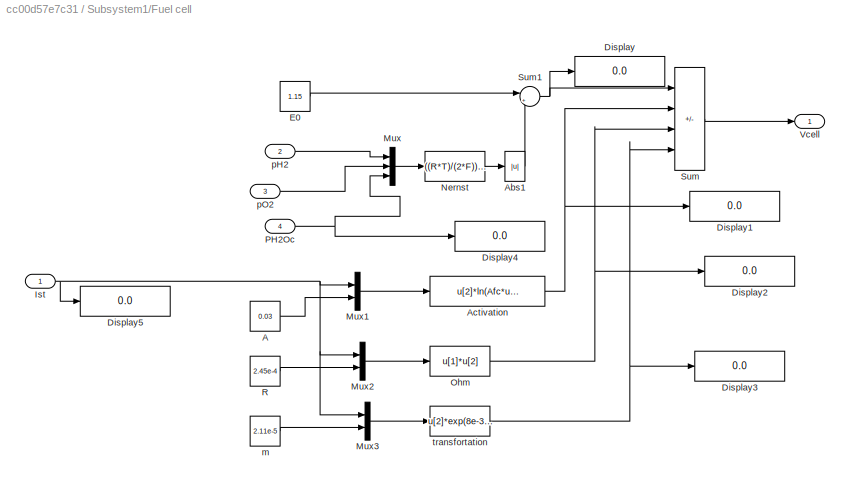
BLOCK [SubSystem] Subsystem1/Fuel cell
BLOCK [Constant] Subsystem1/Fuel cell/A
  NameLocation = top
  Value = 0.03
BLOCK [Abs] Subsystem1/Fuel cell/Abs1
BLOCK [Fcn] Subsystem1/Fuel cell/Activation
  Expr = u[2]*ln(Afc*u[1]+0.001)
BLOCK [Display] Subsystem1/Fuel cell/Display
  Decimation = 1
BLOCK [Display] Subsystem1/Fuel cell/Display1
  Decimation = 1
BLOCK [Display] Subsystem1/Fuel cell/Display2
  Decimation = 1
BLOCK [Display] Subsystem1/Fuel cell/Display3
  Decimation = 1
BLOCK [Display] Subsystem1/Fuel cell/Display4
  Decimation = 1
BLOCK [Display] Subsystem1/Fuel cell/Display5
  Decimation = 1
BLOCK [Constant] Subsystem1/Fuel cell/E0
  NameLocation = top
  Value = 1.15
BLOCK [Inport] Subsystem1/Fuel cell/Ist
BLOCK [Mux] Subsystem1/Fuel cell/Mux
  DisplayOption = bar
  Inputs = 3
BLOCK [Mux] Subsystem1/Fuel cell/Mux1
  DisplayOption = bar
  Inputs = 2
BLOCK [Mux] Subsystem1/Fuel cell/Mux2
  DisplayOption = bar
  Inputs = 2
BLOCK [Mux] Subsystem1/Fuel cell/Mux3
  DisplayOption = bar
  Inputs = 2
BLOCK [Fcn] Subsystem1/Fuel cell/Nernst
  Expr = ((R*T)/(2*F))*ln(u[1]*sqrt(u[2])/(u[3]))
BLOCK [Fcn] Subsystem1/Fuel cell/Ohm
  Expr = u[1]*u[2]
BLOCK [Inport] Subsystem1/Fuel cell/PH2Oc
  Port = 4
BLOCK [Constant] Subsystem1/Fuel cell/R
  NameLocation = top
  Value = 2.45e-4
BLOCK [Sum] Subsystem1/Fuel cell/Sum
  IconShape = rectangular
  Inputs = |+---|
  SaturateOnIntegerOverflow = on
BLOCK [Sum] Subsystem1/Fuel cell/Sum1
  Inputs = |++
  SaturateOnIntegerOverflow = on
BLOCK [Outport] Subsystem1/Fuel cell/Vcell 
BLOCK [Constant] Subsystem1/Fuel cell/m
  NameLocation = top
  Value = 2.11e-5
BLOCK [Inport] Subsystem1/Fuel cell/pH2
  Port = 2
BLOCK [Inport] Subsystem1/Fuel cell/pO2
  Port = 3
BLOCK [Fcn] Subsystem1/Fuel cell/transfortation
  Expr = u[2]*exp(8e-3*u[1])
BLOCK [Goto] Subsystem1/Goto13
  GotoTag = x2_ph2oa
BLOCK [Goto] Subsystem1/Goto14
  GotoTag = x4_pn2
BLOCK [Constant] Subsystem1/Humidity_C
  NameLocation = top
  Value = 47.39
BLOCK [SubSystem] Subsystem1/Ist generator
  Commented = on
BLOCK [Constant] Subsystem1/Ist generator/Constat
  NameLocation = top
  Value = 0
BLOCK [Fcn] Subsystem1/Ist generator/Fcn
  Expr = u[1]/u[2]
BLOCK [Outport] Subsystem1/Ist generator/Ist
BLOCK [Mux] Subsystem1/Ist generator/Mux
  DisplayOption = bar
  Inputs = 2
BLOCK [Inport] Subsystem1/Ist generator/Rload
  Port = 2
BLOCK [Saturate] Subsystem1/Ist generator/Saturation
  LowerLimit = 0
  UpperLimit = 10000
BLOCK [Sum] Subsystem1/Ist generator/Sum
  Inputs = |++
  SaturateOnIntegerOverflow = on
BLOCK [Inport] Subsystem1/Ist generator/Vfc
BLOCK [SubSystem] Subsystem1/PI linear Control 
  NameLocation = top
BLOCK [Display] Subsystem1/PI linear Control /Display2
  Decimation = 1
BLOCK [Inport] Subsystem1/PI linear Control /Ist
BLOCK [SubSystem] Subsystem1/PI linear Control /Linear PI  v1
  NameLocation = top
BLOCK [Constant] Subsystem1/PI linear Control /Linear PI  v1/Constant2
  Value = 3
BLOCK [Gain] Subsystem1/PI linear Control /Linear PI  v1/Gain1
  Gain = 0
  OutDataTypeStr = Inherit: Same as input
  ParamDataTypeStr = Inherit: Same as input
  SaturateOnIntegerOverflow = on
BLOCK [Gain] Subsystem1/PI linear Control /Linear PI  v1/Gain2
  Gain = 5
  OutDataTypeStr = Inherit: Same as input
  ParamDataTypeStr = Inherit: Same as input
  SaturateOnIntegerOverflow = on
BLOCK [Gain] Subsystem1/PI linear Control /Linear PI  v1/Gain3
  Gain = 5
  OutDataTypeStr = Inherit: Same as input
  ParamDataTypeStr = Inherit: Same as input
  SaturateOnIntegerOverflow = on
BLOCK [Integrator] Subsystem1/PI linear Control /Linear PI  v1/Integrator1
  LimitOutput = on
  LowerSaturationLimit = -100
  UpperSaturationLimit = 100
BLOCK [Inport] Subsystem1/PI linear Control /Linear PI  v1/Ist
  NameLocation = top
  Port = 2
BLOCK [Sum] Subsystem1/PI linear Control /Linear PI  v1/Sum3
  IconShape = rectangular
  InputSameDT = on
  Inputs = -+
  OutDataTypeStr = Inherit: Same as first input
  SaturateOnIntegerOverflow = on
BLOCK [Sum] Subsystem1/PI linear Control /Linear PI  v1/Sum4
  IconShape = rectangular
  InputSameDT = on
  Inputs = +++
  OutDataTypeStr = Inherit: Same as first input
  SaturateOnIntegerOverflow = on
BLOCK [Inport] Subsystem1/PI linear Control /Linear PI  v1/pO2
  NameLocation = top
BLOCK [Outport] Subsystem1/PI linear Control /Linear PI  v1/v2 
BLOCK [SubSystem] Subsystem1/PI linear Control /Linear PI  v2
  NameLocation = top
BLOCK [Constant] Subsystem1/PI linear Control /Linear PI  v2/Constant2
  Value = 3
BLOCK [Gain] Subsystem1/PI linear Control /Linear PI  v2/Gain1
  Gain = 0
  OutDataTypeStr = Inherit: Same as input
  ParamDataTypeStr = Inherit: Same as input
  SaturateOnIntegerOverflow = on
BLOCK [Gain] Subsystem1/PI linear Control /Linear PI  v2/Gain2
  Gain = 50
  OutDataTypeStr = Inherit: Same as input
  ParamDataTypeStr = Inherit: Same as input
  SaturateOnIntegerOverflow = on
BLOCK [Gain] Subsystem1/PI linear Control /Linear PI  v2/Gain3
  Gain = 50
  OutDataTypeStr = Inherit: Same as input
  ParamDataTypeStr = Inherit: Same as input
  SaturateOnIntegerOverflow = on
BLOCK [Integrator] Subsystem1/PI linear Control /Linear PI  v2/Integrator1
  LimitOutput = on
  LowerSaturationLimit = -1000
  UpperSaturationLimit = 1000
BLOCK [Inport] Subsystem1/PI linear Control /Linear PI  v2/Ist
  NameLocation = top
  Port = 2
BLOCK [Sum] Subsystem1/PI linear Control /Linear PI  v2/Sum3
  IconShape = rectangular
  InputSameDT = on
  Inputs = -+
  OutDataTypeStr = Inherit: Same as first input
  SaturateOnIntegerOverflow = on
BLOCK [Sum] Subsystem1/PI linear Control /Linear PI  v2/Sum4
  IconShape = rectangular
  InputSameDT = on
  Inputs = +++
  OutDataTypeStr = Inherit: Same as first input
  SaturateOnIntegerOverflow = on
BLOCK [Inport] Subsystem1/PI linear Control /Linear PI  v2/pO2
  NameLocation = top
BLOCK [Outport] Subsystem1/PI linear Control /Linear PI  v2/v2 
BLOCK [Inport] Subsystem1/PI linear Control /PH2
  Port = 2
BLOCK [Inport] Subsystem1/PI linear Control /PO2
  Port = 3
BLOCK [Outport] Subsystem1/PI linear Control /U1 
BLOCK [Outport] Subsystem1/PI linear Control /U2
  Port = 2
BLOCK [Saturate] Subsystem1/PI linear Control /limiter
  LowerLimit = 0
  UpperLimit = 1000
  ZeroCross = off
BLOCK [Saturate] Subsystem1/PI linear Control /limiter1
  LowerLimit = 0
  UpperLimit = 1000
  ZeroCross = off
BLOCK [Product] Subsystem1/Product1
BLOCK [Saturate] Subsystem1/Saturation
  LowerLimit = 0
  UpperLimit = 10000
BLOCK [Scope] Subsystem1/Scope
  Floating = off
  NumInputPorts = 3
  ScopeSpecificationString = Simulink.scopes.TimeScopeBlockCfg('CurrentConfiguration', extmgr.ConfigurationSet(extmgr.Configuration('Core','General UI',true),extmgr.Configuration('Core','Source UI',true),extmgr.Configuration('Sources','WiredSimulink',true,'DataLoggingVariableName','ScopeData2'),extmgr.Configuration('Visuals','Time Domain',true,'SerializedDisplays',{struct('MinYLimReal','-5.9378','MaxYLimReal','53.44021','YLab...<+3118ch>
BLOCK [Scope] Subsystem1/Scope3
  Floating = off
  NumInputPorts = 2
  ScopeSpecificationString = Simulink.scopes.TimeScopeBlockCfg('CurrentConfiguration', extmgr.ConfigurationSet(extmgr.Configuration('Core','General UI',true),extmgr.Configuration('Core','Source UI',true),extmgr.Configuration('Sources','WiredSimulink',true,'DataLoggingVariableName','ScopeData3'),extmgr.Configuration('Visuals','Time Domain',true,'SerializedDisplays',{struct('MinYLimReal','-0.1993','MaxYLimReal','1.79367','YLabe...<+2243ch>
BLOCK [Reference] Subsystem1/Timer2  REF=powerlib_extras/Control 
Blocks/Timer
  Commented = on
  SourceBlock = powerlib_extras/Control \nBlocks/Timer
  SourceType = Timer
BLOCK [TransferFcn] Subsystem1/Transfer Fcn
  Denominator = [1e-4 1]
  NameLocation = top
BLOCK [Sum] Sum
  Inputs = |+-
BLOCK [Reference] Voltage Measurement  REF=spsVoltageMeasurementLib/Voltage Measurement
  LibrarySourceBlock = sps_lib/Sensors and Measurements/Voltage Measurement
  SourceBlock = spsVoltageMeasurementLib/Voltage Measurement
  SourceType = Voltage Measurement
  UserDataPersistent = on
BLOCK [Reference] Voltage Measurement1  REF=spsVoltageMeasurementLib/Voltage Measurement
  LibrarySourceBlock = sps_lib/Sensors and Measurements/Voltage Measurement
  SourceBlock = spsVoltageMeasurementLib/Voltage Measurement
  SourceType = Voltage Measurement
  UserDataPersistent = on
BLOCK [Reference] Voltage Measurement2  REF=spsVoltageMeasurementLib/Voltage Measurement
  LibrarySourceBlock = sps_lib/Sensors and Measurements/Voltage Measurement
  SourceBlock = spsVoltageMeasurementLib/Voltage Measurement
  SourceType = Voltage Measurement
  UserDataPersistent = on
BLOCK [Reference] Voltage Measurement3  REF=spsVoltageMeasurementLib/Voltage Measurement
  LibrarySourceBlock = sps_lib/Sensors and Measurements/Voltage Measurement
  SourceBlock = spsVoltageMeasurementLib/Voltage Measurement
  SourceType = Voltage Measurement
  UserDataPersistent = on
BLOCK [Reference] powergui  REF=sps_lib/powergui
  LibrarySourceBlock = sps_lib/powergui
  Priority = 1
  SourceBlock = sps_lib/powergui
  SourceType = PSB option menu block
ANNOTATION Subsystem/PI linear Control /Linear PI  v1: PI Curent Regulator
ANNOTATION Subsystem/PI linear Control /Linear PI  v2: PI Curent Regulator
ANNOTATION Subsystem1/PI linear Control /Linear PI  v1: PI Curent Regulator
ANNOTATION Subsystem1/PI linear Control /Linear PI  v2: PI Curent Regulator
LINE Active & Reactive Power:1 -> Demux:1
LINE Constant1:1 -> Gain2:1
LINE Constant2:1 -> Divide1:2
NET Current Measurement1:1 -> Product:2, Scope4:3
LINE Current Measurement2:1 -> Product1:1
LINE Current Measurement3:1 -> Discrete 1st-Order Filter3:1
LINE Current Measurement:1 -> Goto3:1
NET Demux:1 -> Divide1:1, Divide:1, Scope5:3
NET Discrete 1st-Order Filter1:1 -> Scope2:3, Sum:2
LINE Discrete 1st-Order Filter2:1 -> Scope1:2
LINE Discrete 1st-Order Filter3:1 -> Gain3:1
NET Discrete 1st-Order Filter4:1 -> DC//AC:1, Product2:2, Scope3:2
NET Discrete 1st-Order Filter6:1 -> PID Controller:1, Scope2:1
LINE Divide1:1 -> Scope5:5
LINE Divide:1 -> Saturation:1
LINE From1:1 -> Scope4:1
LINE From2:1 -> Discrete 1st-Order Filter1:1
LINE From3:1 -> DC//AC:3
NET From4:1 -> DC//AC:4, Scope3:3
NET From5:1 -> Active & Reactive Power:1, Scope5:1
NET From6:1 -> Active & Reactive Power:2, Scope5:2
LINE From7:1 -> Divide:2
NET From8:1 -> IGBT1:1, IGBT4:1
LINE From9:1 -> Scope2:2
NET From:1 -> IGBT2:1, IGBT3:1
NET Gain1:1 -> PWM Generator (DC-DC):1, Scope2:4
LINE Gain2:1 -> Sum:1
NET Gain3:1 -> DC//AC:2, Goto4:1, Product2:1, Scope3:4
LINE Gain:1 -> Discrete 1st-Order Filter6:1
LINE PID Controller:1 -> Gain1:1
LINE PWM Generator (DC-DC):1 -> IGBT:1
LINE Product1:1 -> Discrete 1st-Order Filter2:1
NET Product2:1 -> Goto5:1, Scope3:1
LINE Product:1 -> Scope1:1
LINE Pulse Generator1:1 -> Goto6:1
LINE Pulse Generator2:1 -> Goto7:1
NET Saturation:1 -> Display1:1, Scope5:4
LINE Subsystem/A-2:1 -> Subsystem/Transfer Fcn:1
LINE Subsystem/Anode Model/Abs1:1 -> Subsystem/Anode Model/Saturation1:1
LINE Subsystem/Anode Model/Abs:1 -> Subsystem/Anode Model/Saturation2:1
LINE Subsystem/Anode Model/C1:1 -> Subsystem/Anode Model/Water Model :3
NET Subsystem/Anode Model/Hydrogen Model/Integrator:1 -> Subsystem/Anode Model/Hydrogen Model/Mux:1, Subsystem/Anode Model/Hydrogen Model/pH2_x1:1
LINE Subsystem/Anode Model/Hydrogen Model/Mux:1 -> Subsystem/Anode Model/Hydrogen Model/x1//(x1+x2):1
NET Subsystem/Anode Model/Hydrogen Model/NI//2F:1 -> Subsystem/Anode Model/Hydrogen Model/Sum1:2, Subsystem/Anode Model/Hydrogen Model/Sum:2
LINE Subsystem/Anode Model/Hydrogen Model/Product:1 -> Subsystem/Anode Model/Hydrogen Model/Sum:3
LINE Subsystem/Anode Model/Hydrogen Model/RT//Va:1 -> Subsystem/Anode Model/Hydrogen Model/Integrator:1
LINE Subsystem/Anode Model/Hydrogen Model/Sum1:1 -> Subsystem/Anode Model/Hydrogen Model/Product:1
LINE Subsystem/Anode Model/Hydrogen Model/Sum:1 -> Subsystem/Anode Model/Hydrogen Model/RT//Va:1
LINE Subsystem/Anode Model/Hydrogen Model/mole frac of H2 0.99:1 -> Subsystem/Anode Model/Hydrogen Model/Sum:1
NET Subsystem/Anode Model/Hydrogen Model/mole//sec:1 -> Subsystem/Anode Model/Hydrogen Model/Sum1:1, Subsystem/Anode Model/Hydrogen Model/mole frac of H2 0.99:1
LINE Subsystem/Anode Model/Hydrogen Model/pH20_a_x2:1 -> Subsystem/Anode Model/Hydrogen Model/Mux:2
NET Subsystem/Anode Model/Hydrogen Model/x1//(x1+x2):1 -> Subsystem/Anode Model/Hydrogen Model/Display5:1, Subsystem/Anode Model/Hydrogen Model/Product:2
LINE Subsystem/Anode Model/Hydrogen Model/x6:1 -> Subsystem/Anode Model/Hydrogen Model/mole//sec:1
LINE Subsystem/Anode Model/Hydrogen Model/x8:1 -> Subsystem/Anode Model/Hydrogen Model/NI//2F:1
LINE Subsystem/Anode Model/Hydrogen Model:1 -> Subsystem/Anode Model/Abs:1
NET Subsystem/Anode Model/Saturation1:1 -> Subsystem/Anode Model/Hydrogen Model:3, Subsystem/Anode Model/x2_pH2Oa:1
NET Subsystem/Anode Model/Saturation2:1 -> Subsystem/Anode Model/Water Model :2, Subsystem/Anode Model/x1_pH2:1
LINE Subsystem/Anode Model/Water Model /C1//(x1+x2-C2):1 -> Subsystem/Anode Model/Water Model /Product1:2
LINE Subsystem/Anode Model/Water Model /C1:1 -> Subsystem/Anode Model/Water Model /Mux1:3
NET Subsystem/Anode Model/Water Model /Integrator:1 -> Subsystem/Anode Model/Water Model /Mux1:1, Subsystem/Anode Model/Water Model /Mux:1, Subsystem/Anode Model/Water Model /pH2O_a_x2:1
LINE Subsystem/Anode Model/Water Model /Mux1:1 -> Subsystem/Anode Model/Water Model /C1//(x1+x2-C2):1
LINE Subsystem/Anode Model/Water Model /Mux:1 -> Subsystem/Anode Model/Water Model /x1//(x1+x2):1
LINE Subsystem/Anode Model/Water Model /Product1:1 -> Subsystem/Anode Model/Water Model /Sum:1
LINE Subsystem/Anode Model/Water Model /Product:1 -> Subsystem/Anode Model/Water Model /Sum:2
LINE Subsystem/Anode Model/Water Model /RT//Va:1 -> Subsystem/Anode Model/Water Model /Integrator:1
LINE Subsystem/Anode Model/Water Model /Sum:1 -> Subsystem/Anode Model/Water Model /RT//Va:1
NET Subsystem/Anode Model/Water Model /mole//sec:1 -> Subsystem/Anode Model/Water Model /Product1:1, Subsystem/Anode Model/Water Model /Product:1
NET Subsystem/Anode Model/Water Model /pH2_x1:1 -> Subsystem/Anode Model/Water Model /Mux1:2, Subsystem/Anode Model/Water Model /Mux:2
LINE Subsystem/Anode Model/Water Model /x1//(x1+x2):1 -> Subsystem/Anode Model/Water Model /Product:2
LINE Subsystem/Anode Model/Water Model /x6:1 -> Subsystem/Anode Model/Water Model /mole//sec:1
LINE Subsystem/Anode Model/Water Model :1 -> Subsystem/Anode Model/Abs1:1
LINE Subsystem/Anode Model/X6_Ist:1 -> Subsystem/Anode Model/Hydrogen Model:2
NET Subsystem/Anode Model/X6_U1:1 -> Subsystem/Anode Model/Hydrogen Model:1, Subsystem/Anode Model/Water Model :1
NET Subsystem/Anode Model:1 -> Subsystem/Fuel cell:2, Subsystem/PI linear Control :2
LINE Subsystem/Anode Model:2 -> Subsystem/Goto13:1
LINE Subsystem/Cathode Model/Abs1:1 -> Subsystem/Cathode Model/Saturation1:1
LINE Subsystem/Cathode Model/Abs2:1 -> Subsystem/Cathode Model/Saturation2:1
LINE Subsystem/Cathode Model/Abs:1 -> Subsystem/Cathode Model/Saturation:1
LINE Subsystem/Cathode Model/C2:1 -> Subsystem/Cathode Model/Water Model :5
LINE Subsystem/Cathode Model/Nitrogen Model/Constant:1 -> Subsystem/Cathode Model/Nitrogen Model/Sum1:4
NET Subsystem/Cathode Model/Nitrogen Model/Integrator:1 -> Subsystem/Cathode Model/Nitrogen Model/Display2:1, Subsystem/Cathode Model/Nitrogen Model/Mux:1, Subsystem/Cathode Model/Nitrogen Model/Sum1:1, Subsystem/Cathode Model/Nitrogen Model/x4_pN2:1
LINE Subsystem/Cathode Model/Nitrogen Model/Mux:1 -> Subsystem/Cathode Model/Nitrogen Model/x1//(x1+x2+x3):1
LINE Subsystem/Cathode Model/Nitrogen Model/Product:1 -> Subsystem/Cathode Model/Nitrogen Model/mole frac of N2 0.1:1
LINE Subsystem/Cathode Model/Nitrogen Model/RT//Vc:1 -> Subsystem/Cathode Model/Nitrogen Model/Integrator:1
LINE Subsystem/Cathode Model/Nitrogen Model/Sum1:1 -> Subsystem/Cathode Model/Nitrogen Model/Product:1
LINE Subsystem/Cathode Model/Nitrogen Model/Sum:1 -> Subsystem/Cathode Model/Nitrogen Model/RT//Vc:1
LINE Subsystem/Cathode Model/Nitrogen Model/mole frac of N2 0.1:1 -> Subsystem/Cathode Model/Nitrogen Model/Sum:2
LINE Subsystem/Cathode Model/Nitrogen Model/mole frac of N2 0.79:1 -> Subsystem/Cathode Model/Nitrogen Model/Sum:1
LINE Subsystem/Cathode Model/Nitrogen Model/mole//sec:1 -> Subsystem/Cathode Model/Nitrogen Model/mole frac of N2 0.79:1
LINE Subsystem/Cathode Model/Nitrogen Model/x1//(x1+x2+x3):1 -> Subsystem/Cathode Model/Nitrogen Model/Product:2
NET Subsystem/Cathode Model/Nitrogen Model/x3_pO2:1 -> Subsystem/Cathode Model/Nitrogen Model/Mux:2, Subsystem/Cathode Model/Nitrogen Model/Sum1:2
NET Subsystem/Cathode Model/Nitrogen Model/x5_pH20_c:1 -> Subsystem/Cathode Model/Nitrogen Model/Mux:3, Subsystem/Cathode Model/Nitrogen Model/Sum1:3
LINE Subsystem/Cathode Model/Nitrogen Model/x7_u2:1 -> Subsystem/Cathode Model/Nitrogen Model/mole//sec:1
LINE Subsystem/Cathode Model/Nitrogen Model:1 -> Subsystem/Cathode Model/Abs1:1
NET Subsystem/Cathode Model/Oxygen Model/Integrator:1 -> Subsystem/Cathode Model/Oxygen Model/Mux:1, Subsystem/Cathode Model/Oxygen Model/x3_pO2:1
LINE Subsystem/Cathode Model/Oxygen Model/Mux:1 -> Subsystem/Cathode Model/Oxygen Model/x1//(x1+x2):1
NET Subsystem/Cathode Model/Oxygen Model/NI//4F:1 -> Subsystem/Cathode Model/Oxygen Model/Sum1:2, Subsystem/Cathode Model/Oxygen Model/Sum:2
LINE Subsystem/Cathode Model/Oxygen Model/Product:1 -> Subsystem/Cathode Model/Oxygen Model/Sum:3
LINE Subsystem/Cathode Model/Oxygen Model/RT//Vc:1 -> Subsystem/Cathode Model/Oxygen Model/Integrator:1
LINE Subsystem/Cathode Model/Oxygen Model/Sum1:1 -> Subsystem/Cathode Model/Oxygen Model/Product:1
LINE Subsystem/Cathode Model/Oxygen Model/Sum:1 -> Subsystem/Cathode Model/Oxygen Model/RT//Vc:1
LINE Subsystem/Cathode Model/Oxygen Model/mole frac of O2 0.21:1 -> Subsystem/Cathode Model/Oxygen Model/Sum:1
NET Subsystem/Cathode Model/Oxygen Model/mole//sec:1 -> Subsystem/Cathode Model/Oxygen Model/Sum1:1, Subsystem/Cathode Model/Oxygen Model/mole frac of O2 0.21:1
LINE Subsystem/Cathode Model/Oxygen Model/x1//(x1+x2):1 -> Subsystem/Cathode Model/Oxygen Model/Product:2
LINE Subsystem/Cathode Model/Oxygen Model/x4_pN2:1 -> Subsystem/Cathode Model/Oxygen Model/Mux:2
LINE Subsystem/Cathode Model/Oxygen Model/x5_ pH20_c:1 -> Subsystem/Cathode Model/Oxygen Model/Mux:3
LINE Subsystem/Cathode Model/Oxygen Model/x7_u2:1 -> Subsystem/Cathode Model/Oxygen Model/mole//sec:1
LINE Subsystem/Cathode Model/Oxygen Model/x8_Ist:1 -> Subsystem/Cathode Model/Oxygen Model/NI//4F:1
LINE Subsystem/Cathode Model/Oxygen Model:1 -> Subsystem/Cathode Model/Abs:1
NET Subsystem/Cathode Model/Saturation1:1 -> Subsystem/Cathode Model/Oxygen Model:3, Subsystem/Cathode Model/Water Model :4, Subsystem/Cathode Model/x4_pN2:1
NET Subsystem/Cathode Model/Saturation2:1 -> Subsystem/Cathode Model/Nitrogen Model:3, Subsystem/Cathode Model/Oxygen Model:4, Subsystem/Cathode Model/x5_pH2Oc:1
NET Subsystem/Cathode Model/Saturation:1 -> Subsystem/Cathode Model/Nitrogen Model:2, Subsystem/Cathode Model/Water Model :3, Subsystem/Cathode Model/x3_pO2:1
LINE Subsystem/Cathode Model/Water Model /C1//(x1+x2+x5-C1):1 -> Subsystem/Cathode Model/Water Model /Product1:2
LINE Subsystem/Cathode Model/Water Model /C2:1 -> Subsystem/Cathode Model/Water Model /Mux1:4
NET Subsystem/Cathode Model/Water Model /Integrator:1 -> Subsystem/Cathode Model/Water Model /Mux1:1, Subsystem/Cathode Model/Water Model /Mux:1, Subsystem/Cathode Model/Water Model /x5_pH2O_c:1
LINE Subsystem/Cathode Model/Water Model /Mux1:1 -> Subsystem/Cathode Model/Water Model /C1//(x1+x2+x5-C1):1
LINE Subsystem/Cathode Model/Water Model /Mux:1 -> Subsystem/Cathode Model/Water Model /x1//(x1+x2+x3):1
NET Subsystem/Cathode Model/Water Model /NI//2F1:1 -> Subsystem/Cathode Model/Water Model /Sum1:2, Subsystem/Cathode Model/Water Model /Sum:2
LINE Subsystem/Cathode Model/Water Model /Product1:1 -> Subsystem/Cathode Model/Water Model /Sum:1
LINE Subsystem/Cathode Model/Water Model /Product:1 -> Subsystem/Cathode Model/Water Model /Sum:3
LINE Subsystem/Cathode Model/Water Model /RT//Va:1 -> Subsystem/Cathode Model/Water Model /Integrator:1
LINE Subsystem/Cathode Model/Water Model /Sum1:1 -> Subsystem/Cathode Model/Water Model /Product:1
LINE Subsystem/Cathode Model/Water Model /Sum:1 -> Subsystem/Cathode Model/Water Model /RT//Va:1
NET Subsystem/Cathode Model/Water Model /mole//sec:1 -> Subsystem/Cathode Model/Water Model /Product1:1, Subsystem/Cathode Model/Water Model /Sum1:1
LINE Subsystem/Cathode Model/Water Model /x1//(x1+x2+x3):1 -> Subsystem/Cathode Model/Water Model /Product:2
NET Subsystem/Cathode Model/Water Model /x3_pO2:1 -> Subsystem/Cathode Model/Water Model /Mux1:2, Subsystem/Cathode Model/Water Model /Mux:2
NET Subsystem/Cathode Model/Water Model /x4_pN2:1 -> Subsystem/Cathode Model/Water Model /Mux1:3, Subsystem/Cathode Model/Water Model /Mux:3
LINE Subsystem/Cathode Model/Water Model /x7_u2:1 -> Subsystem/Cathode Model/Water Model /mole//sec:1
LINE Subsystem/Cathode Model/Water Model /x8_Ist:1 -> Subsystem/Cathode Model/Water Model /NI//2F1:1
LINE Subsystem/Cathode Model/Water Model :1 -> Subsystem/Cathode Model/Abs2:1
NET Subsystem/Cathode Model/X7_U2:1 -> Subsystem/Cathode Model/Nitrogen Model:1, Subsystem/Cathode Model/Oxygen Model:1, Subsystem/Cathode Model/Water Model :1
NET Subsystem/Cathode Model/X8_Ist:1 -> Subsystem/Cathode Model/Oxygen Model:2, Subsystem/Cathode Model/Water Model :2
NET Subsystem/Cathode Model:1 -> Subsystem/Fuel cell:3, Subsystem/PI linear Control :3
LINE Subsystem/Cathode Model:2 -> Subsystem/Fuel cell:4
LINE Subsystem/Cathode Model:3 -> Subsystem/Goto14:1
NET Subsystem/Current Measurement:1 -> Subsystem/Discrete 1st-Order Filter1:1, Subsystem/Product1:2, Subsystem/Saturation:1
LINE Subsystem/Discrete 1st-Order Filter1:1 -> Subsystem/Scope:2
LINE Subsystem/Discrete 1st-Order Filter4:1 -> Subsystem/Scope:3
LINE Subsystem/Discrete 1st-Order Filter5:1 -> Subsystem/Scope:1
LINE Subsystem/From4:1 -> Subsystem/Scope3:1
LINE Subsystem/From9:1 -> Subsystem/Scope3:2
LINE Subsystem/Fuel cell/A:1 -> Subsystem/Fuel cell/Mux1:2
LINE Subsystem/Fuel cell/Abs1:1 -> Subsystem/Fuel cell/Sum1:2
NET Subsystem/Fuel cell/Activation:1 -> Subsystem/Fuel cell/Display1:1, Subsystem/Fuel cell/Sum:2
LINE Subsystem/Fuel cell/E0:1 -> Subsystem/Fuel cell/Sum1:1
NET Subsystem/Fuel cell/Ist:1 -> Subsystem/Fuel cell/Display5:1, Subsystem/Fuel cell/Mux1:1, Subsystem/Fuel cell/Mux2:1, Subsystem/Fuel cell/Mux3:1
LINE Subsystem/Fuel cell/Mux1:1 -> Subsystem/Fuel cell/Activation:1
LINE Subsystem/Fuel cell/Mux2:1 -> Subsystem/Fuel cell/Ohm:1
LINE Subsystem/Fuel cell/Mux3:1 -> Subsystem/Fuel cell/transfortation:1
LINE Subsystem/Fuel cell/Mux:1 -> Subsystem/Fuel cell/Nernst:1
LINE Subsystem/Fuel cell/Nernst:1 -> Subsystem/Fuel cell/Abs1:1
NET Subsystem/Fuel cell/Ohm:1 -> Subsystem/Fuel cell/Display2:1, Subsystem/Fuel cell/Sum:3
NET Subsystem/Fuel cell/PH2Oc:1 -> Subsystem/Fuel cell/Display4:1, Subsystem/Fuel cell/Mux:3
LINE Subsystem/Fuel cell/R:1 -> Subsystem/Fuel cell/Mux2:2
NET Subsystem/Fuel cell/Sum1:1 -> Subsystem/Fuel cell/Display:1, Subsystem/Fuel cell/Sum:1
LINE Subsystem/Fuel cell/Sum:1 -> Subsystem/Fuel cell/Vcell :1
LINE Subsystem/Fuel cell/m:1 -> Subsystem/Fuel cell/Mux3:2
LINE Subsystem/Fuel cell/pH2:1 -> Subsystem/Fuel cell/Mux:1
LINE Subsystem/Fuel cell/pO2:1 -> Subsystem/Fuel cell/Mux:2
NET Subsystem/Fuel cell/transfortation:1 -> Subsystem/Fuel cell/Display3:1, Subsystem/Fuel cell/Sum:4
LINE Subsystem/Fuel cell:1 -> Subsystem/A-2:1
NET Subsystem/Humidity_C:1 -> Subsystem/Anode Model:3, Subsystem/Cathode Model:3
LINE Subsystem/Ist generator/Constat:1 -> Subsystem/Ist generator/Sum:2
LINE Subsystem/Ist generator/Fcn:1 -> Subsystem/Ist generator/Saturation:1
LINE Subsystem/Ist generator/Mux:1 -> Subsystem/Ist generator/Fcn:1
LINE Subsystem/Ist generator/Rload:1 -> Subsystem/Ist generator/Mux:2
LINE Subsystem/Ist generator/Saturation:1 -> Subsystem/Ist generator/Sum:1
LINE Subsystem/Ist generator/Sum:1 -> Subsystem/Ist generator/Ist:1
LINE Subsystem/Ist generator/Vfc:1 -> Subsystem/Ist generator/Mux:1
NET Subsystem/PI linear Control /Ist:1 -> Subsystem/PI linear Control /Linear PI  v1:2, Subsystem/PI linear Control /Linear PI  v2:2
LINE Subsystem/PI linear Control /Linear PI  v1/Constant2:1 -> Subsystem/PI linear Control /Linear PI  v1/Sum3:2
LINE Subsystem/PI linear Control /Linear PI  v1/Gain1:1 -> Subsystem/PI linear Control /Linear PI  v1/Sum4:3
LINE Subsystem/PI linear Control /Linear PI  v1/Gain2:1 -> Subsystem/PI linear Control /Linear PI  v1/Integrator1:1
LINE Subsystem/PI linear Control /Linear PI  v1/Gain3:1 -> Subsystem/PI linear Control /Linear PI  v1/Sum4:1
LINE Subsystem/PI linear Control /Linear PI  v1/Integrator1:1 -> Subsystem/PI linear Control /Linear PI  v1/Sum4:2
LINE Subsystem/PI linear Control /Linear PI  v1/Ist:1 -> Subsystem/PI linear Control /Linear PI  v1/Gain1:1
NET Subsystem/PI linear Control /Linear PI  v1/Sum3:1 -> Subsystem/PI linear Control /Linear PI  v1/Gain2:1, Subsystem/PI linear Control /Linear PI  v1/Gain3:1
LINE Subsystem/PI linear Control /Linear PI  v1/Sum4:1 -> Subsystem/PI linear Control /Linear PI  v1/v2 :1
LINE Subsystem/PI linear Control /Linear PI  v1/pO2:1 -> Subsystem/PI linear Control /Linear PI  v1/Sum3:1
LINE Subsystem/PI linear Control /Linear PI  v1:1 -> Subsystem/PI linear Control /limiter:1
LINE Subsystem/PI linear Control /Linear PI  v2/Constant2:1 -> Subsystem/PI linear Control /Linear PI  v2/Sum3:2
LINE Subsystem/PI linear Control /Linear PI  v2/Gain1:1 -> Subsystem/PI linear Control /Linear PI  v2/Sum4:3
LINE Subsystem/PI linear Control /Linear PI  v2/Gain2:1 -> Subsystem/PI linear Control /Linear PI  v2/Integrator1:1
LINE Subsystem/PI linear Control /Linear PI  v2/Gain3:1 -> Subsystem/PI linear Control /Linear PI  v2/Sum4:1
LINE Subsystem/PI linear Control /Linear PI  v2/Integrator1:1 -> Subsystem/PI linear Control /Linear PI  v2/Sum4:2
LINE Subsystem/PI linear Control /Linear PI  v2/Ist:1 -> Subsystem/PI linear Control /Linear PI  v2/Gain1:1
NET Subsystem/PI linear Control /Linear PI  v2/Sum3:1 -> Subsystem/PI linear Control /Linear PI  v2/Gain2:1, Subsystem/PI linear Control /Linear PI  v2/Gain3:1
LINE Subsystem/PI linear Control /Linear PI  v2/Sum4:1 -> Subsystem/PI linear Control /Linear PI  v2/v2 :1
LINE Subsystem/PI linear Control /Linear PI  v2/pO2:1 -> Subsystem/PI linear Control /Linear PI  v2/Sum3:1
LINE Subsystem/PI linear Control /Linear PI  v2:1 -> Subsystem/PI linear Control /limiter1:1
LINE Subsystem/PI linear Control /PH2:1 -> Subsystem/PI linear Control /Linear PI  v1:1
LINE Subsystem/PI linear Control /PO2:1 -> Subsystem/PI linear Control /Linear PI  v2:1
LINE Subsystem/PI linear Control /limiter1:1 -> Subsystem/PI linear Control /U2:1
NET Subsystem/PI linear Control /limiter:1 -> Subsystem/PI linear Control /Display2:1, Subsystem/PI linear Control /U1 :1
LINE Subsystem/PI linear Control :1 -> Subsystem/Anode Model:1
LINE Subsystem/PI linear Control :2 -> Subsystem/Cathode Model:1
LINE Subsystem/Product1:1 -> Subsystem/Discrete 1st-Order Filter4:1
NET Subsystem/Saturation:1 -> Subsystem/Anode Model:2, Subsystem/Cathode Model:2, Subsystem/Fuel cell:1, Subsystem/PI linear Control :1
LINE Subsystem/Timer2:1 -> Subsystem/Ist generator:2
NET Subsystem/Transfer Fcn:1 -> Subsystem/Controlled Voltage Source:1, Subsystem/Discrete 1st-Order Filter5:1, Subsystem/Ist generator:1, Subsystem/Product1:1
LINE Subsystem1/A-2:1 -> Subsystem1/Transfer Fcn:1
LINE Subsystem1/Anode Model/Abs1:1 -> Subsystem1/Anode Model/Saturation1:1
LINE Subsystem1/Anode Model/Abs:1 -> Subsystem1/Anode Model/Saturation2:1
LINE Subsystem1/Anode Model/C1:1 -> Subsystem1/Anode Model/Water Model :3
NET Subsystem1/Anode Model/Hydrogen Model/Integrator:1 -> Subsystem1/Anode Model/Hydrogen Model/Mux:1, Subsystem1/Anode Model/Hydrogen Model/pH2_x1:1
LINE Subsystem1/Anode Model/Hydrogen Model/Mux:1 -> Subsystem1/Anode Model/Hydrogen Model/x1//(x1+x2):1
NET Subsystem1/Anode Model/Hydrogen Model/NI//2F:1 -> Subsystem1/Anode Model/Hydrogen Model/Sum1:2, Subsystem1/Anode Model/Hydrogen Model/Sum:2
LINE Subsystem1/Anode Model/Hydrogen Model/Product:1 -> Subsystem1/Anode Model/Hydrogen Model/Sum:3
LINE Subsystem1/Anode Model/Hydrogen Model/RT//Va:1 -> Subsystem1/Anode Model/Hydrogen Model/Integrator:1
LINE Subsystem1/Anode Model/Hydrogen Model/Sum1:1 -> Subsystem1/Anode Model/Hydrogen Model/Product:1
LINE Subsystem1/Anode Model/Hydrogen Model/Sum:1 -> Subsystem1/Anode Model/Hydrogen Model/RT//Va:1
LINE Subsystem1/Anode Model/Hydrogen Model/mole frac of H2 0.99:1 -> Subsystem1/Anode Model/Hydrogen Model/Sum:1
NET Subsystem1/Anode Model/Hydrogen Model/mole//sec:1 -> Subsystem1/Anode Model/Hydrogen Model/Sum1:1, Subsystem1/Anode Model/Hydrogen Model/mole frac of H2 0.99:1
LINE Subsystem1/Anode Model/Hydrogen Model/pH20_a_x2:1 -> Subsystem1/Anode Model/Hydrogen Model/Mux:2
NET Subsystem1/Anode Model/Hydrogen Model/x1//(x1+x2):1 -> Subsystem1/Anode Model/Hydrogen Model/Display5:1, Subsystem1/Anode Model/Hydrogen Model/Product:2
LINE Subsystem1/Anode Model/Hydrogen Model/x6:1 -> Subsystem1/Anode Model/Hydrogen Model/mole//sec:1
LINE Subsystem1/Anode Model/Hydrogen Model/x8:1 -> Subsystem1/Anode Model/Hydrogen Model/NI//2F:1
LINE Subsystem1/Anode Model/Hydrogen Model:1 -> Subsystem1/Anode Model/Abs:1
NET Subsystem1/Anode Model/Saturation1:1 -> Subsystem1/Anode Model/Hydrogen Model:3, Subsystem1/Anode Model/x2_pH2Oa:1
NET Subsystem1/Anode Model/Saturation2:1 -> Subsystem1/Anode Model/Water Model :2, Subsystem1/Anode Model/x1_pH2:1
LINE Subsystem1/Anode Model/Water Model /C1//(x1+x2-C2):1 -> Subsystem1/Anode Model/Water Model /Product1:2
LINE Subsystem1/Anode Model/Water Model /C1:1 -> Subsystem1/Anode Model/Water Model /Mux1:3
NET Subsystem1/Anode Model/Water Model /Integrator:1 -> Subsystem1/Anode Model/Water Model /Mux1:1, Subsystem1/Anode Model/Water Model /Mux:1, Subsystem1/Anode Model/Water Model /pH2O_a_x2:1
LINE Subsystem1/Anode Model/Water Model /Mux1:1 -> Subsystem1/Anode Model/Water Model /C1//(x1+x2-C2):1
LINE Subsystem1/Anode Model/Water Model /Mux:1 -> Subsystem1/Anode Model/Water Model /x1//(x1+x2):1
LINE Subsystem1/Anode Model/Water Model /Product1:1 -> Subsystem1/Anode Model/Water Model /Sum:1
LINE Subsystem1/Anode Model/Water Model /Product:1 -> Subsystem1/Anode Model/Water Model /Sum:2
LINE Subsystem1/Anode Model/Water Model /RT//Va:1 -> Subsystem1/Anode Model/Water Model /Integrator:1
LINE Subsystem1/Anode Model/Water Model /Sum:1 -> Subsystem1/Anode Model/Water Model /RT//Va:1
NET Subsystem1/Anode Model/Water Model /mole//sec:1 -> Subsystem1/Anode Model/Water Model /Product1:1, Subsystem1/Anode Model/Water Model /Product:1
NET Subsystem1/Anode Model/Water Model /pH2_x1:1 -> Subsystem1/Anode Model/Water Model /Mux1:2, Subsystem1/Anode Model/Water Model /Mux:2
LINE Subsystem1/Anode Model/Water Model /x1//(x1+x2):1 -> Subsystem1/Anode Model/Water Model /Product:2
LINE Subsystem1/Anode Model/Water Model /x6:1 -> Subsystem1/Anode Model/Water Model /mole//sec:1
LINE Subsystem1/Anode Model/Water Model :1 -> Subsystem1/Anode Model/Abs1:1
LINE Subsystem1/Anode Model/X6_Ist:1 -> Subsystem1/Anode Model/Hydrogen Model:2
NET Subsystem1/Anode Model/X6_U1:1 -> Subsystem1/Anode Model/Hydrogen Model:1, Subsystem1/Anode Model/Water Model :1
NET Subsystem1/Anode Model:1 -> Subsystem1/Fuel cell:2, Subsystem1/PI linear Control :2
LINE Subsystem1/Anode Model:2 -> Subsystem1/Goto13:1
LINE Subsystem1/Cathode Model/Abs1:1 -> Subsystem1/Cathode Model/Saturation1:1
LINE Subsystem1/Cathode Model/Abs2:1 -> Subsystem1/Cathode Model/Saturation2:1
LINE Subsystem1/Cathode Model/Abs:1 -> Subsystem1/Cathode Model/Saturation:1
LINE Subsystem1/Cathode Model/C2:1 -> Subsystem1/Cathode Model/Water Model :5
LINE Subsystem1/Cathode Model/Nitrogen Model/Constant:1 -> Subsystem1/Cathode Model/Nitrogen Model/Sum1:4
NET Subsystem1/Cathode Model/Nitrogen Model/Integrator:1 -> Subsystem1/Cathode Model/Nitrogen Model/Display2:1, Subsystem1/Cathode Model/Nitrogen Model/Mux:1, Subsystem1/Cathode Model/Nitrogen Model/Sum1:1, Subsystem1/Cathode Model/Nitrogen Model/x4_pN2:1
LINE Subsystem1/Cathode Model/Nitrogen Model/Mux:1 -> Subsystem1/Cathode Model/Nitrogen Model/x1//(x1+x2+x3):1
LINE Subsystem1/Cathode Model/Nitrogen Model/Product:1 -> Subsystem1/Cathode Model/Nitrogen Model/mole frac of N2 0.1:1
LINE Subsystem1/Cathode Model/Nitrogen Model/RT//Vc:1 -> Subsystem1/Cathode Model/Nitrogen Model/Integrator:1
LINE Subsystem1/Cathode Model/Nitrogen Model/Sum1:1 -> Subsystem1/Cathode Model/Nitrogen Model/Product:1
LINE Subsystem1/Cathode Model/Nitrogen Model/Sum:1 -> Subsystem1/Cathode Model/Nitrogen Model/RT//Vc:1
LINE Subsystem1/Cathode Model/Nitrogen Model/mole frac of N2 0.1:1 -> Subsystem1/Cathode Model/Nitrogen Model/Sum:2
LINE Subsystem1/Cathode Model/Nitrogen Model/mole frac of N2 0.79:1 -> Subsystem1/Cathode Model/Nitrogen Model/Sum:1
LINE Subsystem1/Cathode Model/Nitrogen Model/mole//sec:1 -> Subsystem1/Cathode Model/Nitrogen Model/mole frac of N2 0.79:1
LINE Subsystem1/Cathode Model/Nitrogen Model/x1//(x1+x2+x3):1 -> Subsystem1/Cathode Model/Nitrogen Model/Product:2
NET Subsystem1/Cathode Model/Nitrogen Model/x3_pO2:1 -> Subsystem1/Cathode Model/Nitrogen Model/Mux:2, Subsystem1/Cathode Model/Nitrogen Model/Sum1:2
NET Subsystem1/Cathode Model/Nitrogen Model/x5_pH20_c:1 -> Subsystem1/Cathode Model/Nitrogen Model/Mux:3, Subsystem1/Cathode Model/Nitrogen Model/Sum1:3
LINE Subsystem1/Cathode Model/Nitrogen Model/x7_u2:1 -> Subsystem1/Cathode Model/Nitrogen Model/mole//sec:1
LINE Subsystem1/Cathode Model/Nitrogen Model:1 -> Subsystem1/Cathode Model/Abs1:1
NET Subsystem1/Cathode Model/Oxygen Model/Integrator:1 -> Subsystem1/Cathode Model/Oxygen Model/Mux:1, Subsystem1/Cathode Model/Oxygen Model/x3_pO2:1
LINE Subsystem1/Cathode Model/Oxygen Model/Mux:1 -> Subsystem1/Cathode Model/Oxygen Model/x1//(x1+x2):1
NET Subsystem1/Cathode Model/Oxygen Model/NI//4F:1 -> Subsystem1/Cathode Model/Oxygen Model/Sum1:2, Subsystem1/Cathode Model/Oxygen Model/Sum:2
LINE Subsystem1/Cathode Model/Oxygen Model/Product:1 -> Subsystem1/Cathode Model/Oxygen Model/Sum:3
LINE Subsystem1/Cathode Model/Oxygen Model/RT//Vc:1 -> Subsystem1/Cathode Model/Oxygen Model/Integrator:1
LINE Subsystem1/Cathode Model/Oxygen Model/Sum1:1 -> Subsystem1/Cathode Model/Oxygen Model/Product:1
LINE Subsystem1/Cathode Model/Oxygen Model/Sum:1 -> Subsystem1/Cathode Model/Oxygen Model/RT//Vc:1
LINE Subsystem1/Cathode Model/Oxygen Model/mole frac of O2 0.21:1 -> Subsystem1/Cathode Model/Oxygen Model/Sum:1
NET Subsystem1/Cathode Model/Oxygen Model/mole//sec:1 -> Subsystem1/Cathode Model/Oxygen Model/Sum1:1, Subsystem1/Cathode Model/Oxygen Model/mole frac of O2 0.21:1
LINE Subsystem1/Cathode Model/Oxygen Model/x1//(x1+x2):1 -> Subsystem1/Cathode Model/Oxygen Model/Product:2
LINE Subsystem1/Cathode Model/Oxygen Model/x4_pN2:1 -> Subsystem1/Cathode Model/Oxygen Model/Mux:2
LINE Subsystem1/Cathode Model/Oxygen Model/x5_ pH20_c:1 -> Subsystem1/Cathode Model/Oxygen Model/Mux:3
LINE Subsystem1/Cathode Model/Oxygen Model/x7_u2:1 -> Subsystem1/Cathode Model/Oxygen Model/mole//sec:1
LINE Subsystem1/Cathode Model/Oxygen Model/x8_Ist:1 -> Subsystem1/Cathode Model/Oxygen Model/NI//4F:1
LINE Subsystem1/Cathode Model/Oxygen Model:1 -> Subsystem1/Cathode Model/Abs:1
NET Subsystem1/Cathode Model/Saturation1:1 -> Subsystem1/Cathode Model/Oxygen Model:3, Subsystem1/Cathode Model/Water Model :4, Subsystem1/Cathode Model/x4_pN2:1
NET Subsystem1/Cathode Model/Saturation2:1 -> Subsystem1/Cathode Model/Nitrogen Model:3, Subsystem1/Cathode Model/Oxygen Model:4, Subsystem1/Cathode Model/x5_pH2Oc:1
NET Subsystem1/Cathode Model/Saturation:1 -> Subsystem1/Cathode Model/Nitrogen Model:2, Subsystem1/Cathode Model/Water Model :3, Subsystem1/Cathode Model/x3_pO2:1
LINE Subsystem1/Cathode Model/Water Model /C1//(x1+x2+x5-C1):1 -> Subsystem1/Cathode Model/Water Model /Product1:2
LINE Subsystem1/Cathode Model/Water Model /C2:1 -> Subsystem1/Cathode Model/Water Model /Mux1:4
NET Subsystem1/Cathode Model/Water Model /Integrator:1 -> Subsystem1/Cathode Model/Water Model /Mux1:1, Subsystem1/Cathode Model/Water Model /Mux:1, Subsystem1/Cathode Model/Water Model /x5_pH2O_c:1
LINE Subsystem1/Cathode Model/Water Model /Mux1:1 -> Subsystem1/Cathode Model/Water Model /C1//(x1+x2+x5-C1):1
LINE Subsystem1/Cathode Model/Water Model /Mux:1 -> Subsystem1/Cathode Model/Water Model /x1//(x1+x2+x3):1
NET Subsystem1/Cathode Model/Water Model /NI//2F1:1 -> Subsystem1/Cathode Model/Water Model /Sum1:2, Subsystem1/Cathode Model/Water Model /Sum:2
LINE Subsystem1/Cathode Model/Water Model /Product1:1 -> Subsystem1/Cathode Model/Water Model /Sum:1
LINE Subsystem1/Cathode Model/Water Model /Product:1 -> Subsystem1/Cathode Model/Water Model /Sum:3
LINE Subsystem1/Cathode Model/Water Model /RT//Va:1 -> Subsystem1/Cathode Model/Water Model /Integrator:1
LINE Subsystem1/Cathode Model/Water Model /Sum1:1 -> Subsystem1/Cathode Model/Water Model /Product:1
LINE Subsystem1/Cathode Model/Water Model /Sum:1 -> Subsystem1/Cathode Model/Water Model /RT//Va:1
NET Subsystem1/Cathode Model/Water Model /mole//sec:1 -> Subsystem1/Cathode Model/Water Model /Product1:1, Subsystem1/Cathode Model/Water Model /Sum1:1
LINE Subsystem1/Cathode Model/Water Model /x1//(x1+x2+x3):1 -> Subsystem1/Cathode Model/Water Model /Product:2
NET Subsystem1/Cathode Model/Water Model /x3_pO2:1 -> Subsystem1/Cathode Model/Water Model /Mux1:2, Subsystem1/Cathode Model/Water Model /Mux:2
NET Subsystem1/Cathode Model/Water Model /x4_pN2:1 -> Subsystem1/Cathode Model/Water Model /Mux1:3, Subsystem1/Cathode Model/Water Model /Mux:3
LINE Subsystem1/Cathode Model/Water Model /x7_u2:1 -> Subsystem1/Cathode Model/Water Model /mole//sec:1
LINE Subsystem1/Cathode Model/Water Model /x8_Ist:1 -> Subsystem1/Cathode Model/Water Model /NI//2F1:1
LINE Subsystem1/Cathode Model/Water Model :1 -> Subsystem1/Cathode Model/Abs2:1
NET Subsystem1/Cathode Model/X7_U2:1 -> Subsystem1/Cathode Model/Nitrogen Model:1, Subsystem1/Cathode Model/Oxygen Model:1, Subsystem1/Cathode Model/Water Model :1
NET Subsystem1/Cathode Model/X8_Ist:1 -> Subsystem1/Cathode Model/Oxygen Model:2, Subsystem1/Cathode Model/Water Model :2
NET Subsystem1/Cathode Model:1 -> Subsystem1/Fuel cell:3, Subsystem1/PI linear Control :3
LINE Subsystem1/Cathode Model:2 -> Subsystem1/Fuel cell:4
LINE Subsystem1/Cathode Model:3 -> Subsystem1/Goto14:1
NET Subsystem1/Current Measurement:1 -> Subsystem1/Discrete 1st-Order Filter1:1, Subsystem1/Product1:2, Subsystem1/Saturation:1
LINE Subsystem1/Discrete 1st-Order Filter1:1 -> Subsystem1/Scope:2
LINE Subsystem1/Discrete 1st-Order Filter4:1 -> Subsystem1/Scope:3
LINE Subsystem1/Discrete 1st-Order Filter5:1 -> Subsystem1/Scope:1
LINE Subsystem1/From4:1 -> Subsystem1/Scope3:1
LINE Subsystem1/From9:1 -> Subsystem1/Scope3:2
LINE Subsystem1/Fuel cell/A:1 -> Subsystem1/Fuel cell/Mux1:2
LINE Subsystem1/Fuel cell/Abs1:1 -> Subsystem1/Fuel cell/Sum1:2
NET Subsystem1/Fuel cell/Activation:1 -> Subsystem1/Fuel cell/Display1:1, Subsystem1/Fuel cell/Sum:2
LINE Subsystem1/Fuel cell/E0:1 -> Subsystem1/Fuel cell/Sum1:1
NET Subsystem1/Fuel cell/Ist:1 -> Subsystem1/Fuel cell/Display5:1, Subsystem1/Fuel cell/Mux1:1, Subsystem1/Fuel cell/Mux2:1, Subsystem1/Fuel cell/Mux3:1
LINE Subsystem1/Fuel cell/Mux1:1 -> Subsystem1/Fuel cell/Activation:1
LINE Subsystem1/Fuel cell/Mux2:1 -> Subsystem1/Fuel cell/Ohm:1
LINE Subsystem1/Fuel cell/Mux3:1 -> Subsystem1/Fuel cell/transfortation:1
LINE Subsystem1/Fuel cell/Mux:1 -> Subsystem1/Fuel cell/Nernst:1
LINE Subsystem1/Fuel cell/Nernst:1 -> Subsystem1/Fuel cell/Abs1:1
NET Subsystem1/Fuel cell/Ohm:1 -> Subsystem1/Fuel cell/Display2:1, Subsystem1/Fuel cell/Sum:3
NET Subsystem1/Fuel cell/PH2Oc:1 -> Subsystem1/Fuel cell/Display4:1, Subsystem1/Fuel cell/Mux:3
LINE Subsystem1/Fuel cell/R:1 -> Subsystem1/Fuel cell/Mux2:2
NET Subsystem1/Fuel cell/Sum1:1 -> Subsystem1/Fuel cell/Display:1, Subsystem1/Fuel cell/Sum:1
LINE Subsystem1/Fuel cell/Sum:1 -> Subsystem1/Fuel cell/Vcell :1
LINE Subsystem1/Fuel cell/m:1 -> Subsystem1/Fuel cell/Mux3:2
LINE Subsystem1/Fuel cell/pH2:1 -> Subsystem1/Fuel cell/Mux:1
LINE Subsystem1/Fuel cell/pO2:1 -> Subsystem1/Fuel cell/Mux:2
NET Subsystem1/Fuel cell/transfortation:1 -> Subsystem1/Fuel cell/Display3:1, Subsystem1/Fuel cell/Sum:4
LINE Subsystem1/Fuel cell:1 -> Subsystem1/A-2:1
NET Subsystem1/Humidity_C:1 -> Subsystem1/Anode Model:3, Subsystem1/Cathode Model:3
LINE Subsystem1/Ist generator/Constat:1 -> Subsystem1/Ist generator/Sum:2
LINE Subsystem1/Ist generator/Fcn:1 -> Subsystem1/Ist generator/Saturation:1
LINE Subsystem1/Ist generator/Mux:1 -> Subsystem1/Ist generator/Fcn:1
LINE Subsystem1/Ist generator/Rload:1 -> Subsystem1/Ist generator/Mux:2
LINE Subsystem1/Ist generator/Saturation:1 -> Subsystem1/Ist generator/Sum:1
LINE Subsystem1/Ist generator/Sum:1 -> Subsystem1/Ist generator/Ist:1
LINE Subsystem1/Ist generator/Vfc:1 -> Subsystem1/Ist generator/Mux:1
NET Subsystem1/PI linear Control /Ist:1 -> Subsystem1/PI linear Control /Linear PI  v1:2, Subsystem1/PI linear Control /Linear PI  v2:2
LINE Subsystem1/PI linear Control /Linear PI  v1/Constant2:1 -> Subsystem1/PI linear Control /Linear PI  v1/Sum3:2
LINE Subsystem1/PI linear Control /Linear PI  v1/Gain1:1 -> Subsystem1/PI linear Control /Linear PI  v1/Sum4:3
LINE Subsystem1/PI linear Control /Linear PI  v1/Gain2:1 -> Subsystem1/PI linear Control /Linear PI  v1/Integrator1:1
LINE Subsystem1/PI linear Control /Linear PI  v1/Gain3:1 -> Subsystem1/PI linear Control /Linear PI  v1/Sum4:1
LINE Subsystem1/PI linear Control /Linear PI  v1/Integrator1:1 -> Subsystem1/PI linear Control /Linear PI  v1/Sum4:2
LINE Subsystem1/PI linear Control /Linear PI  v1/Ist:1 -> Subsystem1/PI linear Control /Linear PI  v1/Gain1:1
NET Subsystem1/PI linear Control /Linear PI  v1/Sum3:1 -> Subsystem1/PI linear Control /Linear PI  v1/Gain2:1, Subsystem1/PI linear Control /Linear PI  v1/Gain3:1
LINE Subsystem1/PI linear Control /Linear PI  v1/Sum4:1 -> Subsystem1/PI linear Control /Linear PI  v1/v2 :1
LINE Subsystem1/PI linear Control /Linear PI  v1/pO2:1 -> Subsystem1/PI linear Control /Linear PI  v1/Sum3:1
LINE Subsystem1/PI linear Control /Linear PI  v1:1 -> Subsystem1/PI linear Control /limiter:1
LINE Subsystem1/PI linear Control /Linear PI  v2/Constant2:1 -> Subsystem1/PI linear Control /Linear PI  v2/Sum3:2
LINE Subsystem1/PI linear Control /Linear PI  v2/Gain1:1 -> Subsystem1/PI linear Control /Linear PI  v2/Sum4:3
LINE Subsystem1/PI linear Control /Linear PI  v2/Gain2:1 -> Subsystem1/PI linear Control /Linear PI  v2/Integrator1:1
LINE Subsystem1/PI linear Control /Linear PI  v2/Gain3:1 -> Subsystem1/PI linear Control /Linear PI  v2/Sum4:1
LINE Subsystem1/PI linear Control /Linear PI  v2/Integrator1:1 -> Subsystem1/PI linear Control /Linear PI  v2/Sum4:2
LINE Subsystem1/PI linear Control /Linear PI  v2/Ist:1 -> Subsystem1/PI linear Control /Linear PI  v2/Gain1:1
NET Subsystem1/PI linear Control /Linear PI  v2/Sum3:1 -> Subsystem1/PI linear Control /Linear PI  v2/Gain2:1, Subsystem1/PI linear Control /Linear PI  v2/Gain3:1
LINE Subsystem1/PI linear Control /Linear PI  v2/Sum4:1 -> Subsystem1/PI linear Control /Linear PI  v2/v2 :1
LINE Subsystem1/PI linear Control /Linear PI  v2/pO2:1 -> Subsystem1/PI linear Control /Linear PI  v2/Sum3:1
LINE Subsystem1/PI linear Control /Linear PI  v2:1 -> Subsystem1/PI linear Control /limiter1:1
LINE Subsystem1/PI linear Control /PH2:1 -> Subsystem1/PI linear Control /Linear PI  v1:1
LINE Subsystem1/PI linear Control /PO2:1 -> Subsystem1/PI linear Control /Linear PI  v2:1
LINE Subsystem1/PI linear Control /limiter1:1 -> Subsystem1/PI linear Control /U2:1
NET Subsystem1/PI linear Control /limiter:1 -> Subsystem1/PI linear Control /Display2:1, Subsystem1/PI linear Control /U1 :1
LINE Subsystem1/PI linear Control :1 -> Subsystem1/Anode Model:1
LINE Subsystem1/PI linear Control :2 -> Subsystem1/Cathode Model:1
LINE Subsystem1/Product1:1 -> Subsystem1/Discrete 1st-Order Filter4:1
NET Subsystem1/Saturation:1 -> Subsystem1/Anode Model:2, Subsystem1/Cathode Model:2, Subsystem1/Fuel cell:1, Subsystem1/PI linear Control :1
LINE Subsystem1/Timer2:1 -> Subsystem1/Ist generator:2
NET Subsystem1/Transfer Fcn:1 -> Subsystem1/Controlled Voltage Source:1, Subsystem1/Discrete 1st-Order Filter5:1, Subsystem1/Ist generator:1, Subsystem1/Product1:1
LINE Sum:1 -> Gain:1
LINE Voltage Measurement1:1 -> Goto2:1
NET Voltage Measurement2:1 -> Goto1:1, Product1:2
LINE Voltage Measurement3:1 -> Discrete 1st-Order Filter4:1
NET Voltage Measurement:1 -> Goto:1, Product:1, Scope4:2
PNET net1: AC Voltage Source:LConn1 -- IGBT2:RConn1 -- IGBT4:LConn1 -- Series RLC Branch2:RConn1 -- Voltage Measurement1:LConn2
PNET net2: AC Voltage Source:RConn1 -- Current Measurement:LConn1 -- Series RLC Branch2:LConn1 -- Voltage Measurement1:LConn1
PNET net3: C1:LConn1 -- Current Measurement1:LConn1 -- Diode:RConn1
PNET net4: C1:RConn1 -- C2:RConn1 -- DC Voltage Source:LConn1 -- Ground:LConn1 -- IGBT3:RConn1 -- IGBT4:RConn1 -- IGBT:RConn1 -- Series RLC Branch:RConn1 -- Subsystem1:RConn2 -- Voltage Measurement2:LConn2 -- Voltage Measurement3:LConn2 -- Voltage Measurement:LConn2
PNET net5: C2:LConn1 -- Current Measurement2:RConn1 -- L1:LConn1 -- Voltage Measurement2:LConn1
PNET net6: Current Measurement1:RConn1 -- DC Voltage Source:RConn1 -- Series RLC Branch1:RConn1 -- Series RLC Branch:LConn1 -- Voltage Measurement3:LConn1 -- Voltage Measurement:LConn1
PLINE Current Measurement2:LConn1 -- Subsystem:RConn1
PNET net7: Current Measurement3:LConn1 -- IGBT1:LConn1 -- IGBT2:LConn1
PLINE Current Measurement3:RConn1 -- Series RLC Branch1:LConn1
PLINE Current Measurement:RConn1 -- Series RLC Branch3:LConn1
PNET net8: Diode:LConn1 -- IGBT:LConn1 -- L1:RConn1
PNET net9: IGBT1:RConn1 -- IGBT3:LConn1 -- Series RLC Branch3:RConn1
PLINE Subsystem/+:RConn1 -- Subsystem/Current Measurement:RConn1
PLINE Subsystem/-:RConn1 -- Subsystem/Controlled Voltage Source:LConn1
PLINE Subsystem/Controlled Voltage Source:RConn1 -- Subsystem/Current Measurement:LConn1
PLINE Subsystem1/+:RConn1 -- Subsystem1/Current Measurement:RConn1
PLINE Subsystem1/-:RConn1 -- Subsystem1/Controlled Voltage Source:LConn1
PLINE Subsystem1/Controlled Voltage Source:RConn1 -- Subsystem1/Current Measurement:LConn1
PLINE Subsystem1:RConn1 -- Subsystem:RConn2
note: NET lines group one-source signal fan-out (src -> all destinations, sorted); 1:1 wires keep LINE; PNET lines group multi-terminal physical nets as a canonical sorted terminal list (undirected conserving connections); 2-terminal nets keep the pairwise PLINE form
